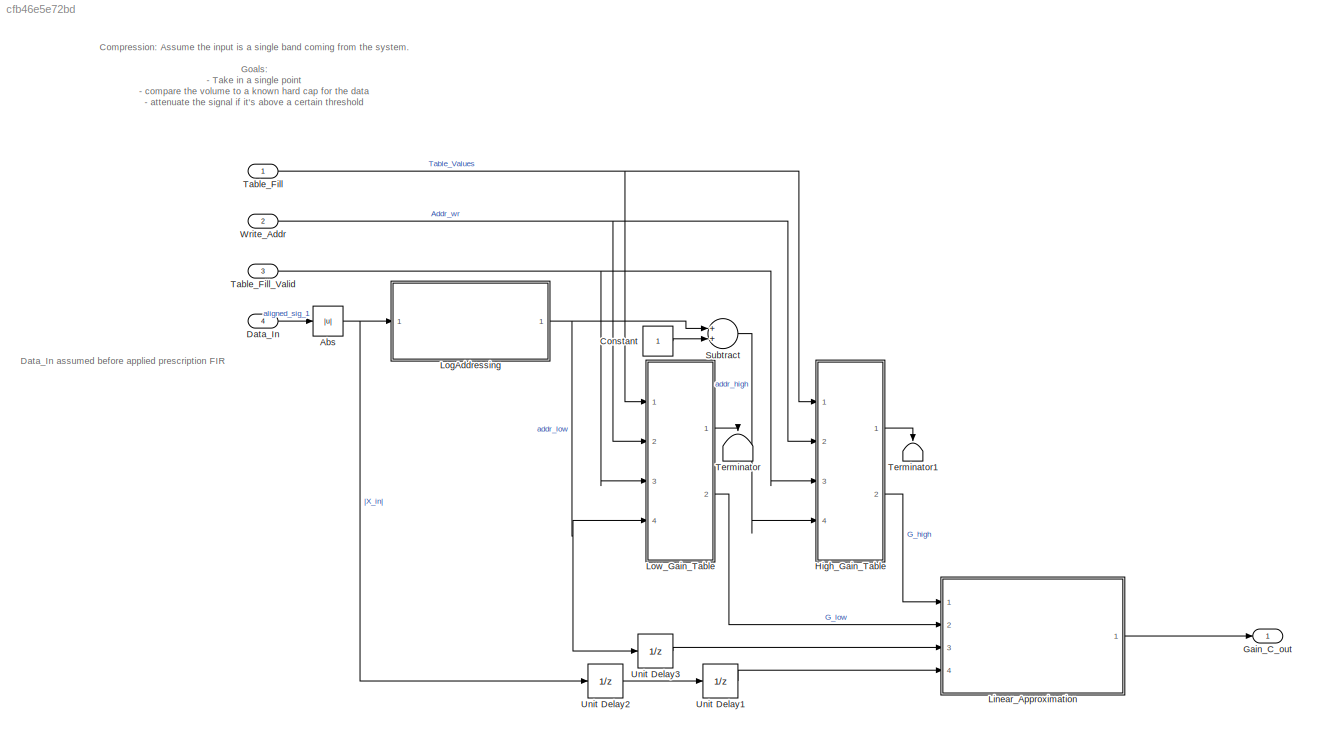
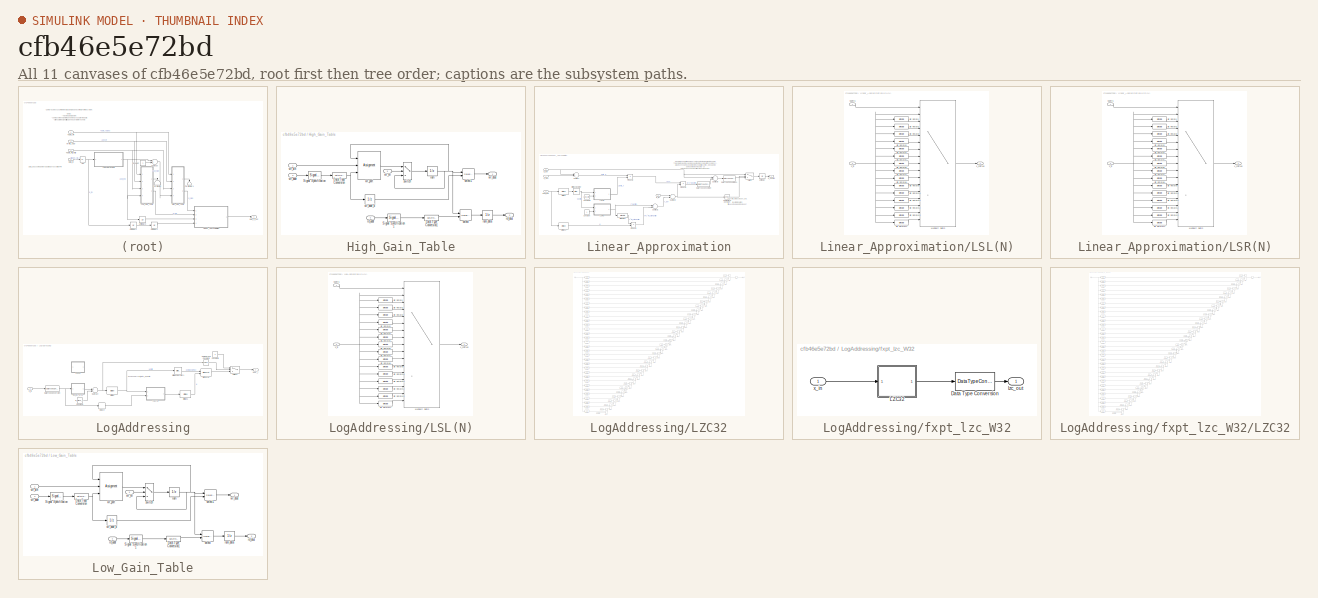
[diagram: thumbnail index - all 11 canvases of the model, root first then tree order]
MODEL slx_cfb46e5e72bd
KIND model
CONFIG AbsTol = auto
CONFIG EnableMultiTasking = off
CONFIG FixedStep = auto
CONFIG InitFcn = clear;\nDIAGNOSTIC = 0;  %% flag to give more information as simulation proceeds such as comments & plots\nCALIB_DIAGNOSTIC =  0; %% flag to give more information about calibration of filterbank due to overlap between filters: Mar 2016\nPRESCRIPT = 1;  %% flag to plot requested versus achieved insertion gains (esp for 125-250 Hz region).\nipfiledigrms = -36; %% input file RMS in dB for 65 dB SPL equiv...<+3611ch>
CONFIG MaxStep = auto
CONFIG MinStep = auto
CONFIG RelTol = 1e-3
CONFIG SampleTimeConstraint = Unconstrained
CONFIG Solver = FixedStepDiscrete
CONFIG SolverName = FixedStepDiscrete
CONFIG StartTime = 0.0
CONFIG StopFcn = proc_sig = double(out.proc_sig.data(:));\n%alignedSigs = double(out.alignedSigs.data(:));\n[opwav, stop_ok] = savewavfile(opfiledigrms, ipfiledigrms, proc_sig, Fs, nbits, NStreams);\n\nload('SweepSimOutput.mat')\nX_out_Sweep_Sim(Volume,:) = proc_sig;\nsave('SweepSimOutput.mat', 'X_out_Sweep_Sim');
CONFIG StopTime = t_end
BLOCK [Abs] Abs
  SaturateOnIntegerOverflow = off
BLOCK [Constant] Constant
  OutDataTypeStr = fixdt(0,9,0)
  SampleTime = -1
BLOCK [Inport] Data_In
  IconDisplay = Port number
  OutDataTypeStr = fixdt(1,32,28)
  Port = 4
  PortDimensions = 1
  SampleTime = [2.0833333333333333e-05,0]
  SamplingMode = Sample based
  SignalType = real
BLOCK [Outport] Gain_C_out
  IconDisplay = Port number
  OutDataTypeStr = fixdt(1,32,28)
  PortDimensions = 1
  SampleTime = [2.0833333333333333e-05,0]
  SamplingMode = Sample based
  SignalType = real
BLOCK [SubSystem] High_Gain_Table
  AncestorBlock = hdlsllibUNLOCKED/HDL RAMs/Dual Port RAM
  Ports = [4, 2]
  RequestExecContextInheritance = off
BLOCK [DataTypeConversion] High_Gain_Table/Data Type Conversion
  OutDataTypeStr = fixdt(0,16,0)
  RndMeth = Floor
  SaturateOnIntegerOverflow = off
BLOCK [DataTypeConversion] High_Gain_Table/Data Type Conversion1
  OutDataTypeStr = fixdt(0,16,0)
  RndMeth = Floor
  SaturateOnIntegerOverflow = off
BLOCK [SignalSpecification] High_Gain_Table/Signal Specification
  Dimensions = 1
  OutDataTypeStr = fixdt(0,ram_size,0)
BLOCK [SignalSpecification] High_Gain_Table/Signal Specification1
  Dimensions = 1
  OutDataTypeStr = fixdt(0,ram_size,0)
BLOCK [UnitDelay] High_Gain_Table/ram
  HasFrameUpgradeWarning = on
  InitialCondition = Table_Fill_t(2^(M_bits+4) +1 : 2*2^(M_bits+4) )
  SampleTime = -1
BLOCK [UnitDelay] High_Gain_Table/ram_data
  HasFrameUpgradeWarning = on
  SampleTime = -1
BLOCK [Inport] High_Gain_Table/rd_addr
  IconDisplay = Port number
  Port = 4
BLOCK [Outport] High_Gain_Table/rd_dout
  IconDisplay = Port number
  Port = 2
BLOCK [Selector] High_Gain_Table/select
  IndexMode = Zero-based
  IndexOptions = Index vector (port)
  Indices = [1 3]
  InputPortWidth = 2^ram_size
  OutputSizes = 1
  Ports = [2, 1]
BLOCK [Selector] High_Gain_Table/select1
  IndexMode = Zero-based
  IndexOptions = Index vector (port)
  Indices = [1 3]
  InputPortWidth = 2^ram_size
  OutputSizes = 1
  Ports = [2, 1]
BLOCK [Switch] High_Gain_Table/switch
  Criteria = u2 ~= 0
  InputSameDT = off
  SaturateOnIntegerOverflow = off
BLOCK [Inport] High_Gain_Table/wr_addr
  IconDisplay = Port number
  Port = 2
BLOCK [UnitDelay] High_Gain_Table/wr_addr_d
  HasFrameUpgradeWarning = on
  SampleTime = -1
BLOCK [Inport] High_Gain_Table/wr_din
  IconDisplay = Port number
BLOCK [Outport] High_Gain_Table/wr_dout
  IconDisplay = Port number
BLOCK [Inport] High_Gain_Table/wr_en
  IconDisplay = Port number
  OutDataTypeStr = boolean
  Port = 3
BLOCK [Assignment] High_Gain_Table/wr_port
  IndexMode = Zero-based
  IndexOptions = Index vector (port)
  Indices = 1
  OutputSizes = [1 1]
  Ports = [3, 1]
BLOCK [SubSystem] Linear_Approximation
  Ports = [4, 1]
  RequestExecContextInheritance = off
BLOCK [Reference] Linear_Approximation/Bit Rotate1  REF=hdlsllib/Logic and Bit
Operations/Bit Rotate
  Ports = [1, 1]
  SourceBlock = hdlsllib/Logic and Bit\nOperations/Bit Rotate
  SourceProductBaseCode = SL
  SourceProductName = Simulink
  SourceType = Bit Rotate
BLOCK [Reference] Linear_Approximation/Bit Slice  REF=hdlsllib/Logic and Bit
Operations/Bit Slice
  Ports = [1, 1]
  SourceBlock = hdlsllib/Logic and Bit\nOperations/Bit Slice
  SourceProductBaseCode = SL
  SourceProductName = Simulink
  SourceType = Bit Slice
BLOCK [Reference] Linear_Approximation/Bit Slice1  REF=hdlsllib/Logic and Bit
Operations/Bit Slice
  Ports = [1, 1]
  SourceBlock = hdlsllib/Logic and Bit\nOperations/Bit Slice
  SourceProductBaseCode = SL
  SourceProductName = Simulink
  SourceType = Bit Slice
BLOCK [Reference] Linear_Approximation/Bitwise Operator  REF=simulink/Logic and Bit
Operations/Bitwise
Operator
  Ports = [1, 1]
  SourceBlock = simulink/Logic and Bit\nOperations/Bitwise\nOperator
  SourceProductBaseCode = SL
  SourceProductName = Simulink
  SourceType = Bitwise Operator
BLOCK [Reference] Linear_Approximation/Compare To Constant  REF=simulink/Logic and Bit
Operations/Compare
To Constant
  Ports = [1, 1]
  SourceBlock = simulink/Logic and Bit\nOperations/Compare\nTo Constant
  SourceProductBaseCode = SL
  SourceProductName = Simulink
  SourceType = Compare To Constant
BLOCK [Constant] Linear_Approximation/Constant
  OutDataTypeStr = fixdt(0,W_bits,W_bits-2)
  SampleTime = -1
BLOCK [Constant] Linear_Approximation/Constant2
  OutDataTypeStr = fixdt(0,W_bits,0)
  SampleTime = -1
  Value = 2^(M_bits)
BLOCK [DataTypeConversion] Linear_Approximation/Data Type Conversion
  OutDataTypeStr = fixdt(1,W_bits,F_bits)
  RndMeth = Floor
  SaturateOnIntegerOverflow = off
BLOCK [DataTypeConversion] Linear_Approximation/Data Type Conversion1
  OutDataTypeStr = fixdt(1,W_bits, F_bits)
  RndMeth = Floor
  SaturateOnIntegerOverflow = off
BLOCK [Outport] Linear_Approximation/G_Desired
  IconDisplay = Port number
BLOCK [Inport] Linear_Approximation/G_high
  IconDisplay = Port number
BLOCK [Inport] Linear_Approximation/G_low
  IconDisplay = Port number
  Port = 2
BLOCK [SubSystem] Linear_Approximation/LSL(N)
  Ports = [2, 1]
  RequestExecContextInheritance = off
BLOCK [Reference] Linear_Approximation/LSL(N)/Bit Rotate  REF=hdlsllib/Logic and Bit
Operations/Bit Rotate
  Ports = [1, 1]
  SourceBlock = hdlsllib/Logic and Bit\nOperations/Bit Rotate
  SourceProductBaseCode = SL
  SourceProductName = Simulink
  SourceType = Bit Rotate
BLOCK [Reference] Linear_Approximation/LSL(N)/Bit Rotate1  REF=hdlsllib/Logic and Bit
Operations/Bit Rotate
  Ports = [1, 1]
  SourceBlock = hdlsllib/Logic and Bit\nOperations/Bit Rotate
  SourceProductBaseCode = SL
  SourceProductName = Simulink
  SourceType = Bit Rotate
BLOCK [Reference] Linear_Approximation/LSL(N)/Bit Rotate10  REF=hdlsllib/Logic and Bit
Operations/Bit Rotate
  Ports = [1, 1]
  SourceBlock = hdlsllib/Logic and Bit\nOperations/Bit Rotate
  SourceProductBaseCode = SL
  SourceProductName = Simulink
  SourceType = Bit Rotate
BLOCK [Reference] Linear_Approximation/LSL(N)/Bit Rotate11  REF=hdlsllib/Logic and Bit
Operations/Bit Rotate
  Ports = [1, 1]
  SourceBlock = hdlsllib/Logic and Bit\nOperations/Bit Rotate
  SourceProductBaseCode = SL
  SourceProductName = Simulink
  SourceType = Bit Rotate
BLOCK [Reference] Linear_Approximation/LSL(N)/Bit Rotate12  REF=hdlsllib/Logic and Bit
Operations/Bit Rotate
  Ports = [1, 1]
  SourceBlock = hdlsllib/Logic and Bit\nOperations/Bit Rotate
  SourceProductBaseCode = SL
  SourceProductName = Simulink
  SourceType = Bit Rotate
BLOCK [Reference] Linear_Approximation/LSL(N)/Bit Rotate13  REF=hdlsllib/Logic and Bit
Operations/Bit Rotate
  Ports = [1, 1]
  SourceBlock = hdlsllib/Logic and Bit\nOperations/Bit Rotate
  SourceProductBaseCode = SL
  SourceProductName = Simulink
  SourceType = Bit Rotate
BLOCK [Reference] Linear_Approximation/LSL(N)/Bit Rotate14  REF=hdlsllib/Logic and Bit
Operations/Bit Rotate
  Ports = [1, 1]
  SourceBlock = hdlsllib/Logic and Bit\nOperations/Bit Rotate
  SourceProductBaseCode = SL
  SourceProductName = Simulink
  SourceType = Bit Rotate
BLOCK [Reference] Linear_Approximation/LSL(N)/Bit Rotate2  REF=hdlsllib/Logic and Bit
Operations/Bit Rotate
  Ports = [1, 1]
  SourceBlock = hdlsllib/Logic and Bit\nOperations/Bit Rotate
  SourceProductBaseCode = SL
  SourceProductName = Simulink
  SourceType = Bit Rotate
BLOCK [Reference] Linear_Approximation/LSL(N)/Bit Rotate3  REF=hdlsllib/Logic and Bit
Operations/Bit Rotate
  Ports = [1, 1]
  SourceBlock = hdlsllib/Logic and Bit\nOperations/Bit Rotate
  SourceProductBaseCode = SL
  SourceProductName = Simulink
  SourceType = Bit Rotate
BLOCK [Reference] Linear_Approximation/LSL(N)/Bit Rotate4  REF=hdlsllib/Logic and Bit
Operations/Bit Rotate
  Ports = [1, 1]
  SourceBlock = hdlsllib/Logic and Bit\nOperations/Bit Rotate
  SourceProductBaseCode = SL
  SourceProductName = Simulink
  SourceType = Bit Rotate
BLOCK [Reference] Linear_Approximation/LSL(N)/Bit Rotate5  REF=hdlsllib/Logic and Bit
Operations/Bit Rotate
  Ports = [1, 1]
  SourceBlock = hdlsllib/Logic and Bit\nOperations/Bit Rotate
  SourceProductBaseCode = SL
  SourceProductName = Simulink
  SourceType = Bit Rotate
BLOCK [Reference] Linear_Approximation/LSL(N)/Bit Rotate6  REF=hdlsllib/Logic and Bit
Operations/Bit Rotate
  Ports = [1, 1]
  SourceBlock = hdlsllib/Logic and Bit\nOperations/Bit Rotate
  SourceProductBaseCode = SL
  SourceProductName = Simulink
  SourceType = Bit Rotate
BLOCK [Reference] Linear_Approximation/LSL(N)/Bit Rotate7  REF=hdlsllib/Logic and Bit
Operations/Bit Rotate
  Ports = [1, 1]
  SourceBlock = hdlsllib/Logic and Bit\nOperations/Bit Rotate
  SourceProductBaseCode = SL
  SourceProductName = Simulink
  SourceType = Bit Rotate
BLOCK [Reference] Linear_Approximation/LSL(N)/Bit Rotate8  REF=hdlsllib/Logic and Bit
Operations/Bit Rotate
  Ports = [1, 1]
  SourceBlock = hdlsllib/Logic and Bit\nOperations/Bit Rotate
  SourceProductBaseCode = SL
  SourceProductName = Simulink
  SourceType = Bit Rotate
BLOCK [Reference] Linear_Approximation/LSL(N)/Bit Rotate9  REF=hdlsllib/Logic and Bit
Operations/Bit Rotate
  Ports = [1, 1]
  SourceBlock = hdlsllib/Logic and Bit\nOperations/Bit Rotate
  SourceProductBaseCode = SL
  SourceProductName = Simulink
  SourceType = Bit Rotate
BLOCK [MultiPortSwitch] Linear_Approximation/LSL(N)/Multiport Switch
  DataPortOrder = Zero-based contiguous
  DiagnosticForDefault = Warning
  InputSameDT = off
  Inputs = 16
  Ports = [17, 1]
  SaturateOnIntegerOverflow = off
  zeroidx = on
BLOCK [Inport] Linear_Approximation/LSL(N)/NShifts
  IconDisplay = Port number
BLOCK [Inport] Linear_Approximation/LSL(N)/x_in
  IconDisplay = Port number
  Port = 2
BLOCK [Outport] Linear_Approximation/LSL(N)/x_shifted
  IconDisplay = Port number
BLOCK [SubSystem] Linear_Approximation/LSR(N)
  Ports = [2, 1]
  RequestExecContextInheritance = off
BLOCK [Reference] Linear_Approximation/LSR(N)/Bit Rotate  REF=hdlsllib/Logic and Bit
Operations/Bit Rotate
  Ports = [1, 1]
  SourceBlock = hdlsllib/Logic and Bit\nOperations/Bit Rotate
  SourceProductBaseCode = SL
  SourceProductName = Simulink
  SourceType = Bit Rotate
BLOCK [Reference] Linear_Approximation/LSR(N)/Bit Rotate1  REF=hdlsllib/Logic and Bit
Operations/Bit Rotate
  Ports = [1, 1]
  SourceBlock = hdlsllib/Logic and Bit\nOperations/Bit Rotate
  SourceProductBaseCode = SL
  SourceProductName = Simulink
  SourceType = Bit Rotate
BLOCK [Reference] Linear_Approximation/LSR(N)/Bit Rotate10  REF=hdlsllib/Logic and Bit
Operations/Bit Rotate
  Ports = [1, 1]
  SourceBlock = hdlsllib/Logic and Bit\nOperations/Bit Rotate
  SourceProductBaseCode = SL
  SourceProductName = Simulink
  SourceType = Bit Rotate
BLOCK [Reference] Linear_Approximation/LSR(N)/Bit Rotate11  REF=hdlsllib/Logic and Bit
Operations/Bit Rotate
  Ports = [1, 1]
  SourceBlock = hdlsllib/Logic and Bit\nOperations/Bit Rotate
  SourceProductBaseCode = SL
  SourceProductName = Simulink
  SourceType = Bit Rotate
BLOCK [Reference] Linear_Approximation/LSR(N)/Bit Rotate12  REF=hdlsllib/Logic and Bit
Operations/Bit Rotate
  Ports = [1, 1]
  SourceBlock = hdlsllib/Logic and Bit\nOperations/Bit Rotate
  SourceProductBaseCode = SL
  SourceProductName = Simulink
  SourceType = Bit Rotate
BLOCK [Reference] Linear_Approximation/LSR(N)/Bit Rotate13  REF=hdlsllib/Logic and Bit
Operations/Bit Rotate
  Ports = [1, 1]
  SourceBlock = hdlsllib/Logic and Bit\nOperations/Bit Rotate
  SourceProductBaseCode = SL
  SourceProductName = Simulink
  SourceType = Bit Rotate
BLOCK [Reference] Linear_Approximation/LSR(N)/Bit Rotate14  REF=hdlsllib/Logic and Bit
Operations/Bit Rotate
  Ports = [1, 1]
  SourceBlock = hdlsllib/Logic and Bit\nOperations/Bit Rotate
  SourceProductBaseCode = SL
  SourceProductName = Simulink
  SourceType = Bit Rotate
BLOCK [Reference] Linear_Approximation/LSR(N)/Bit Rotate2  REF=hdlsllib/Logic and Bit
Operations/Bit Rotate
  Ports = [1, 1]
  SourceBlock = hdlsllib/Logic and Bit\nOperations/Bit Rotate
  SourceProductBaseCode = SL
  SourceProductName = Simulink
  SourceType = Bit Rotate
BLOCK [Reference] Linear_Approximation/LSR(N)/Bit Rotate3  REF=hdlsllib/Logic and Bit
Operations/Bit Rotate
  Ports = [1, 1]
  SourceBlock = hdlsllib/Logic and Bit\nOperations/Bit Rotate
  SourceProductBaseCode = SL
  SourceProductName = Simulink
  SourceType = Bit Rotate
BLOCK [Reference] Linear_Approximation/LSR(N)/Bit Rotate4  REF=hdlsllib/Logic and Bit
Operations/Bit Rotate
  Ports = [1, 1]
  SourceBlock = hdlsllib/Logic and Bit\nOperations/Bit Rotate
  SourceProductBaseCode = SL
  SourceProductName = Simulink
  SourceType = Bit Rotate
BLOCK [Reference] Linear_Approximation/LSR(N)/Bit Rotate5  REF=hdlsllib/Logic and Bit
Operations/Bit Rotate
  Ports = [1, 1]
  SourceBlock = hdlsllib/Logic and Bit\nOperations/Bit Rotate
  SourceProductBaseCode = SL
  SourceProductName = Simulink
  SourceType = Bit Rotate
BLOCK [Reference] Linear_Approximation/LSR(N)/Bit Rotate6  REF=hdlsllib/Logic and Bit
Operations/Bit Rotate
  Ports = [1, 1]
  SourceBlock = hdlsllib/Logic and Bit\nOperations/Bit Rotate
  SourceProductBaseCode = SL
  SourceProductName = Simulink
  SourceType = Bit Rotate
BLOCK [Reference] Linear_Approximation/LSR(N)/Bit Rotate7  REF=hdlsllib/Logic and Bit
Operations/Bit Rotate
  Ports = [1, 1]
  SourceBlock = hdlsllib/Logic and Bit\nOperations/Bit Rotate
  SourceProductBaseCode = SL
  SourceProductName = Simulink
  SourceType = Bit Rotate
BLOCK [Reference] Linear_Approximation/LSR(N)/Bit Rotate8  REF=hdlsllib/Logic and Bit
Operations/Bit Rotate
  Ports = [1, 1]
  SourceBlock = hdlsllib/Logic and Bit\nOperations/Bit Rotate
  SourceProductBaseCode = SL
  SourceProductName = Simulink
  SourceType = Bit Rotate
BLOCK [Reference] Linear_Approximation/LSR(N)/Bit Rotate9  REF=hdlsllib/Logic and Bit
Operations/Bit Rotate
  Ports = [1, 1]
  SourceBlock = hdlsllib/Logic and Bit\nOperations/Bit Rotate
  SourceProductBaseCode = SL
  SourceProductName = Simulink
  SourceType = Bit Rotate
BLOCK [MultiPortSwitch] Linear_Approximation/LSR(N)/Multiport Switch
  DataPortOrder = Zero-based contiguous
  DiagnosticForDefault = Warning
  InputSameDT = off
  Inputs = 16
  Ports = [17, 1]
  SaturateOnIntegerOverflow = off
  zeroidx = on
BLOCK [Inport] Linear_Approximation/LSR(N)/NShifts
  IconDisplay = Port number
BLOCK [Inport] Linear_Approximation/LSR(N)/x_in
  IconDisplay = Port number
  Port = 2
BLOCK [Outport] Linear_Approximation/LSR(N)/x_shifted
  IconDisplay = Port number
BLOCK [Product] Linear_Approximation/Product1
  InputSameDT = off
  OutDataTypeStr = Inherit: Inherit via internal rule
  Ports = [2, 1]
  RndMeth = Floor
  SaturateOnIntegerOverflow = off
BLOCK [Product] Linear_Approximation/Product2
  InputSameDT = off
  OutDataTypeStr = Inherit: Inherit via internal rule
  Ports = [2, 1]
  RndMeth = Floor
  SaturateOnIntegerOverflow = off
BLOCK [Product] Linear_Approximation/Product3
  InputSameDT = off
  OutDataTypeStr = Inherit: Inherit via internal rule
  Ports = [2, 1]
  RndMeth = Floor
  SaturateOnIntegerOverflow = off
BLOCK [Sum] Linear_Approximation/Subtract
  InputSameDT = off
  Inputs = -+
  OutDataTypeStr = Inherit: Inherit via internal rule
  Ports = [2, 1]
  SaturateOnIntegerOverflow = off
BLOCK [Sum] Linear_Approximation/Subtract1
  InputSameDT = off
  OutDataTypeStr = fixdt(1,W_bits, F_bits)
  Ports = [2, 1]
  SaturateOnIntegerOverflow = off
BLOCK [Sum] Linear_Approximation/Subtract2
  InputSameDT = off
  Inputs = +-
  Ports = [2, 1]
  SaturateOnIntegerOverflow = off
BLOCK [Sum] Linear_Approximation/Subtract3
  InputSameDT = off
  OutDataTypeStr = Inherit: Inherit via internal rule
  Ports = [2, 1]
  SaturateOnIntegerOverflow = off
BLOCK [Switch] Linear_Approximation/Switch
  Criteria = u2 > Threshold
  InputSameDT = off
  SaturateOnIntegerOverflow = off
BLOCK [UnitDelay] Linear_Approximation/Unit Delay
  HasFrameUpgradeWarning = on
  InitialCondition = 1
  SampleTime = -1
BLOCK [Inport] Linear_Approximation/addr_low
  IconDisplay = Port number
  Port = 3
BLOCK [Inport] Linear_Approximation/|X_in|
  IconDisplay = Port number
  Port = 4
BLOCK [SubSystem] LogAddressing
  Ports = [1, 1]
  RequestExecContextInheritance = off
BLOCK [Reference] LogAddressing/Bit Concat  REF=hdlsllib/Logic and Bit
Operations/Bit Concat
  Ports = [2, 1]
  SourceBlock = hdlsllib/Logic and Bit\nOperations/Bit Concat
  SourceProductBaseCode = SL
  SourceProductName = Simulink
  SourceType = Bit Concat
BLOCK [Reference] LogAddressing/Bit Slice  REF=hdlsllib/Logic and Bit
Operations/Bit Slice
  Ports = [1, 1]
  SourceBlock = hdlsllib/Logic and Bit\nOperations/Bit Slice
  SourceProductBaseCode = SL
  SourceProductName = Simulink
  SourceType = Bit Slice
BLOCK [Reference] LogAddressing/Bit Slice1  REF=hdlsllib/Logic and Bit
Operations/Bit Slice
  Ports = [1, 1]
  SourceBlock = hdlsllib/Logic and Bit\nOperations/Bit Slice
  SourceProductBaseCode = SL
  SourceProductName = Simulink
  SourceType = Bit Slice
BLOCK [Reference] LogAddressing/Bitwise Operator1  REF=simulink/Logic and Bit
Operations/Bitwise
Operator
  Ports = [1, 1]
  SourceBlock = simulink/Logic and Bit\nOperations/Bitwise\nOperator
  SourceProductBaseCode = SL
  SourceProductName = Simulink
  SourceType = Bitwise Operator
BLOCK [Reference] LogAddressing/Compare To Constant1  REF=simulink/Logic and Bit
Operations/Compare
To Constant
  Ports = [1, 1]
  SourceBlock = simulink/Logic and Bit\nOperations/Compare\nTo Constant
  SourceProductBaseCode = SL
  SourceProductName = Simulink
  SourceType = Compare To Constant
BLOCK [Constant] LogAddressing/Constant1
  OutDataTypeStr = fixdt(0,6,0)
  SampleTime = -1
  Value = W_bits-1-F_bits
BLOCK [Constant] LogAddressing/Constant6
  OutDataTypeStr = fixdt(0,9,0)
  SampleTime = -1
  Value = 0
BLOCK [DataTypeConversion] LogAddressing/Data Type Conversion
  OutDataTypeStr = fixdt(0,W_bits,F_bits)
  RndMeth = Floor
  SaturateOnIntegerOverflow = off
BLOCK [Delay] LogAddressing/Delay2
  DelayLength = 1
  InputPortMap = u0
  Ports = [1, 1]
  SampleTime = Ts_system
BLOCK [SubSystem] LogAddressing/LSL(N)
  Ports = [2, 1]
  RequestExecContextInheritance = off
BLOCK [Reference] LogAddressing/LSL(N)/Bit Rotate  REF=hdlsllib/Logic and Bit
Operations/Bit Rotate
  Ports = [1, 1]
  SourceBlock = hdlsllib/Logic and Bit\nOperations/Bit Rotate
  SourceProductBaseCode = SL
  SourceProductName = Simulink
  SourceType = Bit Rotate
BLOCK [Reference] LogAddressing/LSL(N)/Bit Rotate1  REF=hdlsllib/Logic and Bit
Operations/Bit Rotate
  Ports = [1, 1]
  SourceBlock = hdlsllib/Logic and Bit\nOperations/Bit Rotate
  SourceProductBaseCode = SL
  SourceProductName = Simulink
  SourceType = Bit Rotate
BLOCK [Reference] LogAddressing/LSL(N)/Bit Rotate10  REF=hdlsllib/Logic and Bit
Operations/Bit Rotate
  Ports = [1, 1]
  SourceBlock = hdlsllib/Logic and Bit\nOperations/Bit Rotate
  SourceProductBaseCode = SL
  SourceProductName = Simulink
  SourceType = Bit Rotate
BLOCK [Reference] LogAddressing/LSL(N)/Bit Rotate11  REF=hdlsllib/Logic and Bit
Operations/Bit Rotate
  Ports = [1, 1]
  SourceBlock = hdlsllib/Logic and Bit\nOperations/Bit Rotate
  SourceProductBaseCode = SL
  SourceProductName = Simulink
  SourceType = Bit Rotate
BLOCK [Reference] LogAddressing/LSL(N)/Bit Rotate12  REF=hdlsllib/Logic and Bit
Operations/Bit Rotate
  Ports = [1, 1]
  SourceBlock = hdlsllib/Logic and Bit\nOperations/Bit Rotate
  SourceProductBaseCode = SL
  SourceProductName = Simulink
  SourceType = Bit Rotate
BLOCK [Reference] LogAddressing/LSL(N)/Bit Rotate13  REF=hdlsllib/Logic and Bit
Operations/Bit Rotate
  Ports = [1, 1]
  SourceBlock = hdlsllib/Logic and Bit\nOperations/Bit Rotate
  SourceProductBaseCode = SL
  SourceProductName = Simulink
  SourceType = Bit Rotate
BLOCK [Reference] LogAddressing/LSL(N)/Bit Rotate14  REF=hdlsllib/Logic and Bit
Operations/Bit Rotate
  Ports = [1, 1]
  SourceBlock = hdlsllib/Logic and Bit\nOperations/Bit Rotate
  SourceProductBaseCode = SL
  SourceProductName = Simulink
  SourceType = Bit Rotate
BLOCK [Reference] LogAddressing/LSL(N)/Bit Rotate2  REF=hdlsllib/Logic and Bit
Operations/Bit Rotate
  Ports = [1, 1]
  SourceBlock = hdlsllib/Logic and Bit\nOperations/Bit Rotate
  SourceProductBaseCode = SL
  SourceProductName = Simulink
  SourceType = Bit Rotate
BLOCK [Reference] LogAddressing/LSL(N)/Bit Rotate3  REF=hdlsllib/Logic and Bit
Operations/Bit Rotate
  Ports = [1, 1]
  SourceBlock = hdlsllib/Logic and Bit\nOperations/Bit Rotate
  SourceProductBaseCode = SL
  SourceProductName = Simulink
  SourceType = Bit Rotate
BLOCK [Reference] LogAddressing/LSL(N)/Bit Rotate4  REF=hdlsllib/Logic and Bit
Operations/Bit Rotate
  Ports = [1, 1]
  SourceBlock = hdlsllib/Logic and Bit\nOperations/Bit Rotate
  SourceProductBaseCode = SL
  SourceProductName = Simulink
  SourceType = Bit Rotate
BLOCK [Reference] LogAddressing/LSL(N)/Bit Rotate5  REF=hdlsllib/Logic and Bit
Operations/Bit Rotate
  Ports = [1, 1]
  SourceBlock = hdlsllib/Logic and Bit\nOperations/Bit Rotate
  SourceProductBaseCode = SL
  SourceProductName = Simulink
  SourceType = Bit Rotate
BLOCK [Reference] LogAddressing/LSL(N)/Bit Rotate6  REF=hdlsllib/Logic and Bit
Operations/Bit Rotate
  Ports = [1, 1]
  SourceBlock = hdlsllib/Logic and Bit\nOperations/Bit Rotate
  SourceProductBaseCode = SL
  SourceProductName = Simulink
  SourceType = Bit Rotate
BLOCK [Reference] LogAddressing/LSL(N)/Bit Rotate7  REF=hdlsllib/Logic and Bit
Operations/Bit Rotate
  Ports = [1, 1]
  SourceBlock = hdlsllib/Logic and Bit\nOperations/Bit Rotate
  SourceProductBaseCode = SL
  SourceProductName = Simulink
  SourceType = Bit Rotate
BLOCK [Reference] LogAddressing/LSL(N)/Bit Rotate8  REF=hdlsllib/Logic and Bit
Operations/Bit Rotate
  Ports = [1, 1]
  SourceBlock = hdlsllib/Logic and Bit\nOperations/Bit Rotate
  SourceProductBaseCode = SL
  SourceProductName = Simulink
  SourceType = Bit Rotate
BLOCK [Reference] LogAddressing/LSL(N)/Bit Rotate9  REF=hdlsllib/Logic and Bit
Operations/Bit Rotate
  Ports = [1, 1]
  SourceBlock = hdlsllib/Logic and Bit\nOperations/Bit Rotate
  SourceProductBaseCode = SL
  SourceProductName = Simulink
  SourceType = Bit Rotate
BLOCK [MultiPortSwitch] LogAddressing/LSL(N)/Multiport Switch
  DataPortOrder = Zero-based contiguous
  DiagnosticForDefault = Warning
  InputSameDT = off
  Inputs = 16
  Ports = [17, 1]
  SaturateOnIntegerOverflow = off
  zeroidx = on
BLOCK [Inport] LogAddressing/LSL(N)/NShifts
  IconDisplay = Port number
BLOCK [Inport] LogAddressing/LSL(N)/x_in
  IconDisplay = Port number
  Port = 2
BLOCK [Outport] LogAddressing/LSL(N)/x_shifted
  IconDisplay = Port number
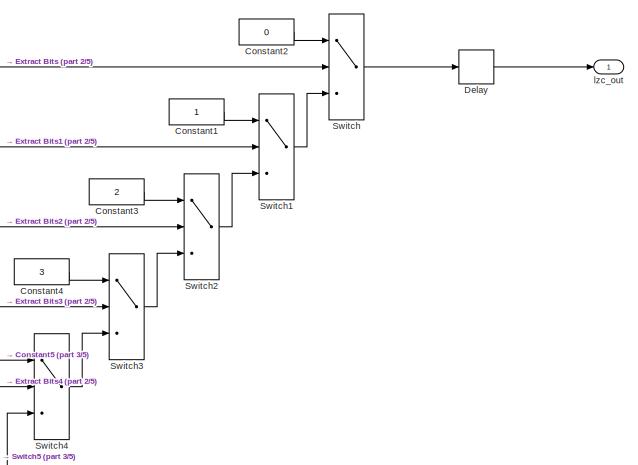
[diagram: LogAddressing/LZC32 - part 1/5, top right region]
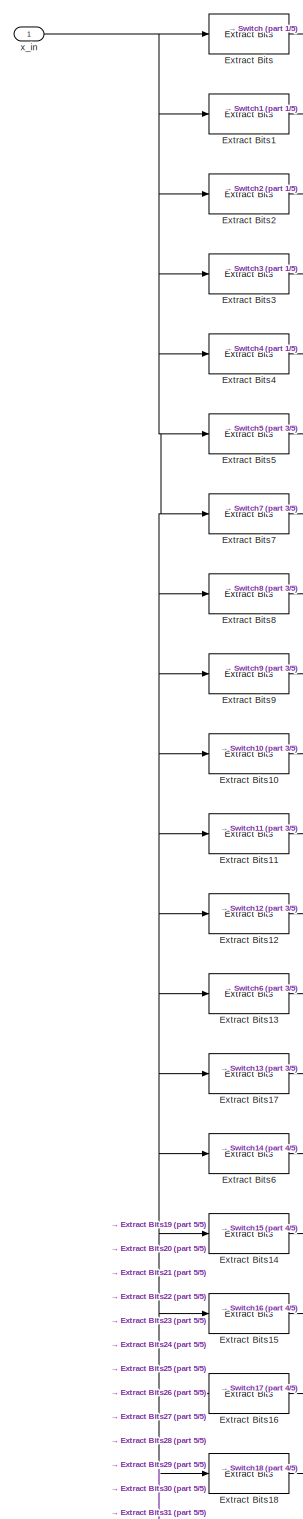
[diagram: LogAddressing/LZC32 - part 2/5, top left region]
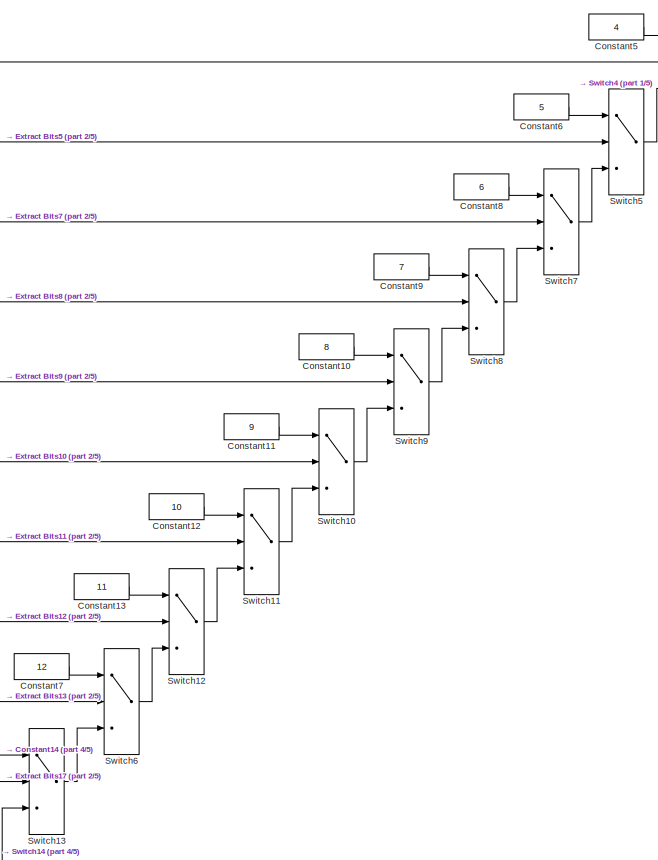
[diagram: LogAddressing/LZC32 - part 3/5, top right region]
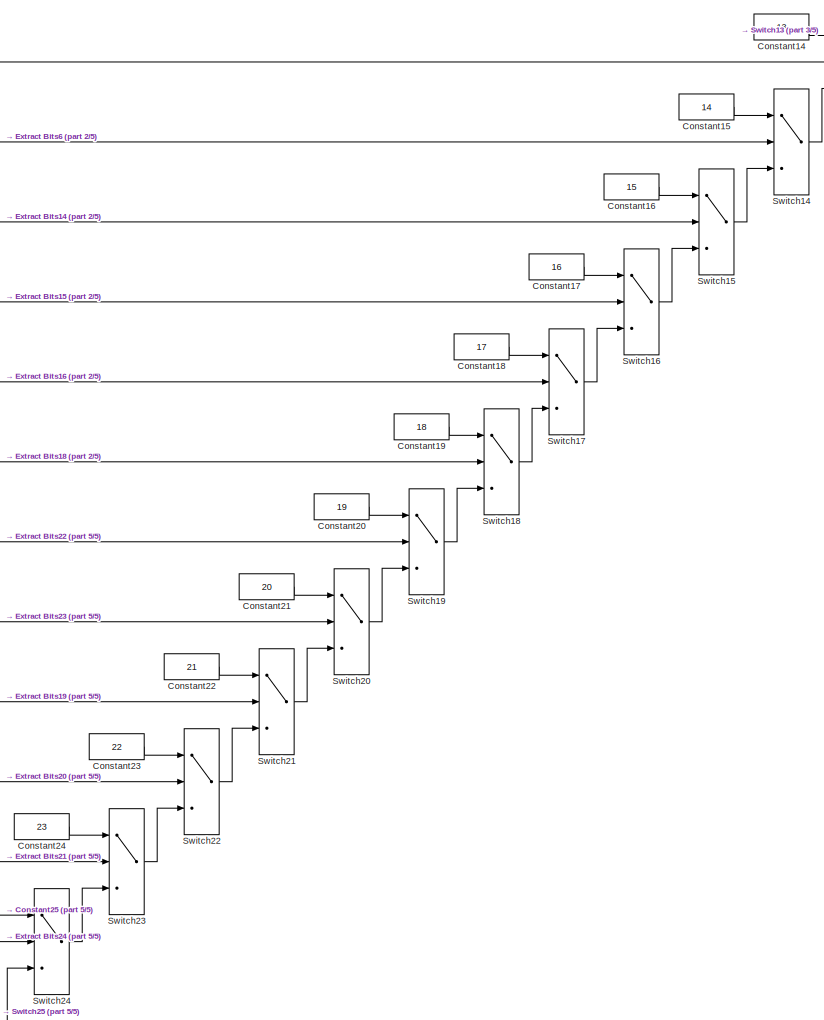
[diagram: LogAddressing/LZC32 - part 4/5, central region]
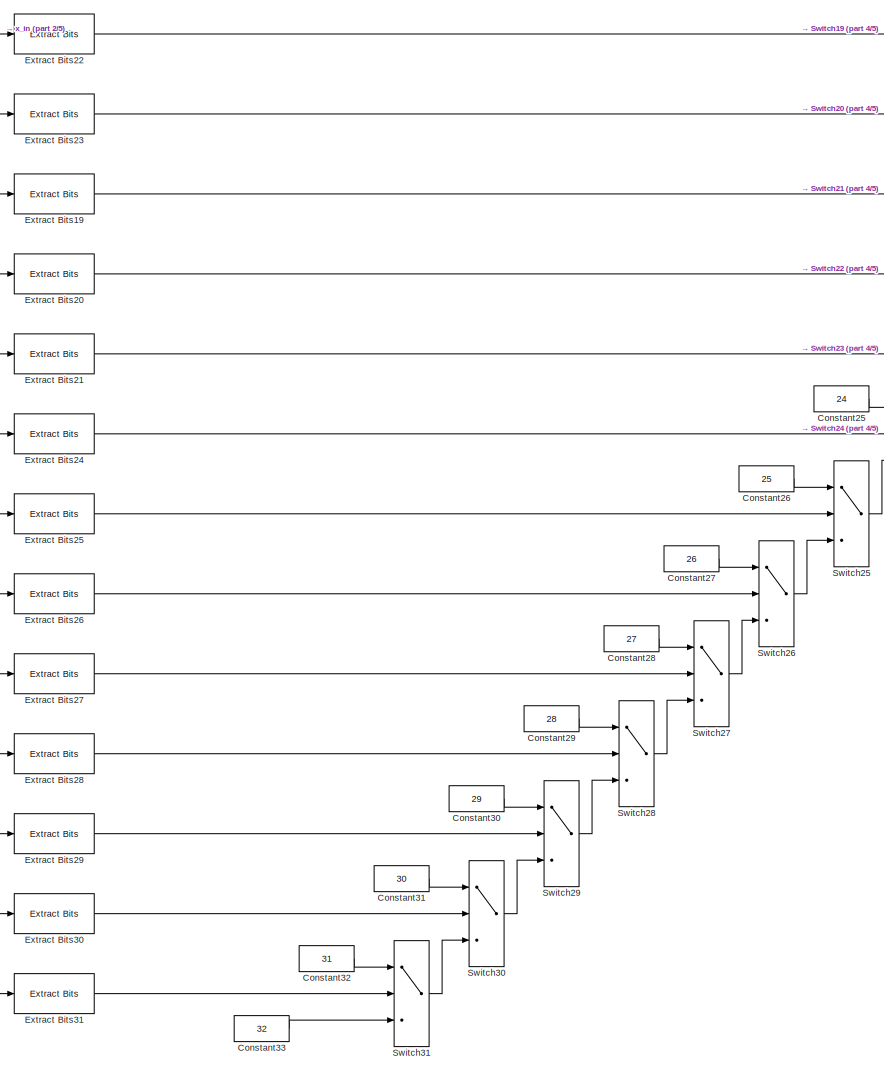
[diagram: LogAddressing/LZC32 - part 5/5, bottom left region]
BLOCK [SubSystem] LogAddressing/LZC32
  Commented = on
  Ports = [1, 1]
  RequestExecContextInheritance = off
  TreatAsAtomicUnit = on
BLOCK [Constant] LogAddressing/LZC32/Constant1
  OutDataTypeStr = fixdt(0,6,0)
  SampleTime = Ts_system
BLOCK [Constant] LogAddressing/LZC32/Constant10
  OutDataTypeStr = fixdt(0,6,0)
  SampleTime = Ts_system
  Value = 8
BLOCK [Constant] LogAddressing/LZC32/Constant11
  OutDataTypeStr = fixdt(0,6,0)
  SampleTime = Ts_system
  Value = 9
BLOCK [Constant] LogAddressing/LZC32/Constant12
  OutDataTypeStr = fixdt(0,6,0)
  SampleTime = Ts_system
  Value = 10
BLOCK [Constant] LogAddressing/LZC32/Constant13
  OutDataTypeStr = fixdt(0,6,0)
  SampleTime = Ts_system
  Value = 11
BLOCK [Constant] LogAddressing/LZC32/Constant14
  OutDataTypeStr = fixdt(0,6,0)
  SampleTime = Ts_system
  Value = 13
BLOCK [Constant] LogAddressing/LZC32/Constant15
  OutDataTypeStr = fixdt(0,6,0)
  SampleTime = Ts_system
  Value = 14
BLOCK [Constant] LogAddressing/LZC32/Constant16
  OutDataTypeStr = fixdt(0,6,0)
  SampleTime = Ts_system
  Value = 15
BLOCK [Constant] LogAddressing/LZC32/Constant17
  OutDataTypeStr = fixdt(0,6,0)
  SampleTime = Ts_system
  Value = 16
BLOCK [Constant] LogAddressing/LZC32/Constant18
  OutDataTypeStr = fixdt(0,6,0)
  SampleTime = Ts_system
  Value = 17
BLOCK [Constant] LogAddressing/LZC32/Constant19
  OutDataTypeStr = fixdt(0,6,0)
  SampleTime = Ts_system
  Value = 18
BLOCK [Constant] LogAddressing/LZC32/Constant2
  OutDataTypeStr = fixdt(0,6,0)
  SampleTime = Ts_system
  Value = 0
BLOCK [Constant] LogAddressing/LZC32/Constant20
  OutDataTypeStr = fixdt(0,6,0)
  SampleTime = Ts_system
  Value = 19
BLOCK [Constant] LogAddressing/LZC32/Constant21
  OutDataTypeStr = fixdt(0,6,0)
  SampleTime = Ts_system
  Value = 20
BLOCK [Constant] LogAddressing/LZC32/Constant22
  OutDataTypeStr = fixdt(0,6,0)
  SampleTime = Ts_system
  Value = 21
BLOCK [Constant] LogAddressing/LZC32/Constant23
  OutDataTypeStr = fixdt(0,6,0)
  SampleTime = Ts_system
  Value = 22
BLOCK [Constant] LogAddressing/LZC32/Constant24
  OutDataTypeStr = fixdt(0,6,0)
  SampleTime = Ts_system
  Value = 23
BLOCK [Constant] LogAddressing/LZC32/Constant25
  OutDataTypeStr = fixdt(0,6,0)
  SampleTime = Ts_system
  Value = 24
BLOCK [Constant] LogAddressing/LZC32/Constant26
  OutDataTypeStr = fixdt(0,6,0)
  SampleTime = Ts_system
  Value = 25
BLOCK [Constant] LogAddressing/LZC32/Constant27
  OutDataTypeStr = fixdt(0,6,0)
  SampleTime = Ts_system
  Value = 26
BLOCK [Constant] LogAddressing/LZC32/Constant28
  OutDataTypeStr = fixdt(0,6,0)
  SampleTime = Ts_system
  Value = 27
BLOCK [Constant] LogAddressing/LZC32/Constant29
  OutDataTypeStr = fixdt(0,6,0)
  SampleTime = Ts_system
  Value = 28
BLOCK [Constant] LogAddressing/LZC32/Constant3
  OutDataTypeStr = fixdt(0,6,0)
  SampleTime = Ts_system
  Value = 2
BLOCK [Constant] LogAddressing/LZC32/Constant30
  OutDataTypeStr = fixdt(0,6,0)
  SampleTime = Ts_system
  Value = 29
BLOCK [Constant] LogAddressing/LZC32/Constant31
  OutDataTypeStr = fixdt(0,6,0)
  SampleTime = Ts_system
  Value = 30
BLOCK [Constant] LogAddressing/LZC32/Constant32
  OutDataTypeStr = fixdt(0,6,0)
  SampleTime = Ts_system
  Value = 31
BLOCK [Constant] LogAddressing/LZC32/Constant33
  OutDataTypeStr = fixdt(0,6,0)
  SampleTime = Ts_system
  Value = 32
BLOCK [Constant] LogAddressing/LZC32/Constant4
  OutDataTypeStr = fixdt(0,6,0)
  SampleTime = Ts_system
  Value = 3
BLOCK [Constant] LogAddressing/LZC32/Constant5
  OutDataTypeStr = fixdt(0,6,0)
  SampleTime = Ts_system
  Value = 4
BLOCK [Constant] LogAddressing/LZC32/Constant6
  OutDataTypeStr = fixdt(0,6,0)
  SampleTime = Ts_system
  Value = 5
BLOCK [Constant] LogAddressing/LZC32/Constant7
  OutDataTypeStr = fixdt(0,6,0)
  SampleTime = Ts_system
  Value = 12
BLOCK [Constant] LogAddressing/LZC32/Constant8
  OutDataTypeStr = fixdt(0,6,0)
  SampleTime = Ts_system
  Value = 6
BLOCK [Constant] LogAddressing/LZC32/Constant9
  OutDataTypeStr = fixdt(0,6,0)
  SampleTime = Ts_system
  Value = 7
BLOCK [Delay] LogAddressing/LZC32/Delay
  DelayLength = 1
  InitialCondition = 3
  InputPortMap = u0
  Ports = [1, 1]
  SampleTime = Ts_system
BLOCK [Reference] LogAddressing/LZC32/Extract Bits  REF=simulink/Logic and Bit
Operations/Extract Bits
  Ports = [1, 1]
  SourceBlock = simulink/Logic and Bit\nOperations/Extract Bits
  SourceProductBaseCode = SL
  SourceProductName = Simulink
  SourceType = Extract Bits
BLOCK [Reference] LogAddressing/LZC32/Extract Bits1  REF=simulink/Logic and Bit
Operations/Extract Bits
  Ports = [1, 1]
  SourceBlock = simulink/Logic and Bit\nOperations/Extract Bits
  SourceProductBaseCode = SL
  SourceProductName = Simulink
  SourceType = Extract Bits
BLOCK [Reference] LogAddressing/LZC32/Extract Bits10  REF=simulink/Logic and Bit
Operations/Extract Bits
  Ports = [1, 1]
  SourceBlock = simulink/Logic and Bit\nOperations/Extract Bits
  SourceProductBaseCode = SL
  SourceProductName = Simulink
  SourceType = Extract Bits
BLOCK [Reference] LogAddressing/LZC32/Extract Bits11  REF=simulink/Logic and Bit
Operations/Extract Bits
  Ports = [1, 1]
  SourceBlock = simulink/Logic and Bit\nOperations/Extract Bits
  SourceProductBaseCode = SL
  SourceProductName = Simulink
  SourceType = Extract Bits
BLOCK [Reference] LogAddressing/LZC32/Extract Bits12  REF=simulink/Logic and Bit
Operations/Extract Bits
  Ports = [1, 1]
  SourceBlock = simulink/Logic and Bit\nOperations/Extract Bits
  SourceProductBaseCode = SL
  SourceProductName = Simulink
  SourceType = Extract Bits
BLOCK [Reference] LogAddressing/LZC32/Extract Bits13  REF=simulink/Logic and Bit
Operations/Extract Bits
  Ports = [1, 1]
  SourceBlock = simulink/Logic and Bit\nOperations/Extract Bits
  SourceProductBaseCode = SL
  SourceProductName = Simulink
  SourceType = Extract Bits
BLOCK [Reference] LogAddressing/LZC32/Extract Bits14  REF=simulink/Logic and Bit
Operations/Extract Bits
  Ports = [1, 1]
  SourceBlock = simulink/Logic and Bit\nOperations/Extract Bits
  SourceProductBaseCode = SL
  SourceProductName = Simulink
  SourceType = Extract Bits
BLOCK [Reference] LogAddressing/LZC32/Extract Bits15  REF=simulink/Logic and Bit
Operations/Extract Bits
  Ports = [1, 1]
  SourceBlock = simulink/Logic and Bit\nOperations/Extract Bits
  SourceProductBaseCode = SL
  SourceProductName = Simulink
  SourceType = Extract Bits
BLOCK [Reference] LogAddressing/LZC32/Extract Bits16  REF=simulink/Logic and Bit
Operations/Extract Bits
  Ports = [1, 1]
  SourceBlock = simulink/Logic and Bit\nOperations/Extract Bits
  SourceProductBaseCode = SL
  SourceProductName = Simulink
  SourceType = Extract Bits
BLOCK [Reference] LogAddressing/LZC32/Extract Bits17  REF=simulink/Logic and Bit
Operations/Extract Bits
  Ports = [1, 1]
  SourceBlock = simulink/Logic and Bit\nOperations/Extract Bits
  SourceProductBaseCode = SL
  SourceProductName = Simulink
  SourceType = Extract Bits
BLOCK [Reference] LogAddressing/LZC32/Extract Bits18  REF=simulink/Logic and Bit
Operations/Extract Bits
  Ports = [1, 1]
  SourceBlock = simulink/Logic and Bit\nOperations/Extract Bits
  SourceProductBaseCode = SL
  SourceProductName = Simulink
  SourceType = Extract Bits
BLOCK [Reference] LogAddressing/LZC32/Extract Bits19  REF=simulink/Logic and Bit
Operations/Extract Bits
  Ports = [1, 1]
  SourceBlock = simulink/Logic and Bit\nOperations/Extract Bits
  SourceProductBaseCode = SL
  SourceProductName = Simulink
  SourceType = Extract Bits
BLOCK [Reference] LogAddressing/LZC32/Extract Bits2  REF=simulink/Logic and Bit
Operations/Extract Bits
  Ports = [1, 1]
  SourceBlock = simulink/Logic and Bit\nOperations/Extract Bits
  SourceProductBaseCode = SL
  SourceProductName = Simulink
  SourceType = Extract Bits
BLOCK [Reference] LogAddressing/LZC32/Extract Bits20  REF=simulink/Logic and Bit
Operations/Extract Bits
  Ports = [1, 1]
  SourceBlock = simulink/Logic and Bit\nOperations/Extract Bits
  SourceProductBaseCode = SL
  SourceProductName = Simulink
  SourceType = Extract Bits
BLOCK [Reference] LogAddressing/LZC32/Extract Bits21  REF=simulink/Logic and Bit
Operations/Extract Bits
  Ports = [1, 1]
  SourceBlock = simulink/Logic and Bit\nOperations/Extract Bits
  SourceProductBaseCode = SL
  SourceProductName = Simulink
  SourceType = Extract Bits
BLOCK [Reference] LogAddressing/LZC32/Extract Bits22  REF=simulink/Logic and Bit
Operations/Extract Bits
  Ports = [1, 1]
  SourceBlock = simulink/Logic and Bit\nOperations/Extract Bits
  SourceProductBaseCode = SL
  SourceProductName = Simulink
  SourceType = Extract Bits
BLOCK [Reference] LogAddressing/LZC32/Extract Bits23  REF=simulink/Logic and Bit
Operations/Extract Bits
  Ports = [1, 1]
  SourceBlock = simulink/Logic and Bit\nOperations/Extract Bits
  SourceProductBaseCode = SL
  SourceProductName = Simulink
  SourceType = Extract Bits
BLOCK [Reference] LogAddressing/LZC32/Extract Bits24  REF=simulink/Logic and Bit
Operations/Extract Bits
  Ports = [1, 1]
  SourceBlock = simulink/Logic and Bit\nOperations/Extract Bits
  SourceProductBaseCode = SL
  SourceProductName = Simulink
  SourceType = Extract Bits
BLOCK [Reference] LogAddressing/LZC32/Extract Bits25  REF=simulink/Logic and Bit
Operations/Extract Bits
  Ports = [1, 1]
  SourceBlock = simulink/Logic and Bit\nOperations/Extract Bits
  SourceProductBaseCode = SL
  SourceProductName = Simulink
  SourceType = Extract Bits
BLOCK [Reference] LogAddressing/LZC32/Extract Bits26  REF=simulink/Logic and Bit
Operations/Extract Bits
  Ports = [1, 1]
  SourceBlock = simulink/Logic and Bit\nOperations/Extract Bits
  SourceProductBaseCode = SL
  SourceProductName = Simulink
  SourceType = Extract Bits
BLOCK [Reference] LogAddressing/LZC32/Extract Bits27  REF=simulink/Logic and Bit
Operations/Extract Bits
  Ports = [1, 1]
  SourceBlock = simulink/Logic and Bit\nOperations/Extract Bits
  SourceProductBaseCode = SL
  SourceProductName = Simulink
  SourceType = Extract Bits
BLOCK [Reference] LogAddressing/LZC32/Extract Bits28  REF=simulink/Logic and Bit
Operations/Extract Bits
  Ports = [1, 1]
  SourceBlock = simulink/Logic and Bit\nOperations/Extract Bits
  SourceProductBaseCode = SL
  SourceProductName = Simulink
  SourceType = Extract Bits
BLOCK [Reference] LogAddressing/LZC32/Extract Bits29  REF=simulink/Logic and Bit
Operations/Extract Bits
  Ports = [1, 1]
  SourceBlock = simulink/Logic and Bit\nOperations/Extract Bits
  SourceProductBaseCode = SL
  SourceProductName = Simulink
  SourceType = Extract Bits
BLOCK [Reference] LogAddressing/LZC32/Extract Bits3  REF=simulink/Logic and Bit
Operations/Extract Bits
  Ports = [1, 1]
  SourceBlock = simulink/Logic and Bit\nOperations/Extract Bits
  SourceProductBaseCode = SL
  SourceProductName = Simulink
  SourceType = Extract Bits
BLOCK [Reference] LogAddressing/LZC32/Extract Bits30  REF=simulink/Logic and Bit
Operations/Extract Bits
  Ports = [1, 1]
  SourceBlock = simulink/Logic and Bit\nOperations/Extract Bits
  SourceProductBaseCode = SL
  SourceProductName = Simulink
  SourceType = Extract Bits
BLOCK [Reference] LogAddressing/LZC32/Extract Bits31  REF=simulink/Logic and Bit
Operations/Extract Bits
  Ports = [1, 1]
  SourceBlock = simulink/Logic and Bit\nOperations/Extract Bits
  SourceProductBaseCode = SL
  SourceProductName = Simulink
  SourceType = Extract Bits
BLOCK [Reference] LogAddressing/LZC32/Extract Bits4  REF=simulink/Logic and Bit
Operations/Extract Bits
  Ports = [1, 1]
  SourceBlock = simulink/Logic and Bit\nOperations/Extract Bits
  SourceProductBaseCode = SL
  SourceProductName = Simulink
  SourceType = Extract Bits
BLOCK [Reference] LogAddressing/LZC32/Extract Bits5  REF=simulink/Logic and Bit
Operations/Extract Bits
  Ports = [1, 1]
  SourceBlock = simulink/Logic and Bit\nOperations/Extract Bits
  SourceProductBaseCode = SL
  SourceProductName = Simulink
  SourceType = Extract Bits
BLOCK [Reference] LogAddressing/LZC32/Extract Bits6  REF=simulink/Logic and Bit
Operations/Extract Bits
  Ports = [1, 1]
  SourceBlock = simulink/Logic and Bit\nOperations/Extract Bits
  SourceProductBaseCode = SL
  SourceProductName = Simulink
  SourceType = Extract Bits
BLOCK [Reference] LogAddressing/LZC32/Extract Bits7  REF=simulink/Logic and Bit
Operations/Extract Bits
  Ports = [1, 1]
  SourceBlock = simulink/Logic and Bit\nOperations/Extract Bits
  SourceProductBaseCode = SL
  SourceProductName = Simulink
  SourceType = Extract Bits
BLOCK [Reference] LogAddressing/LZC32/Extract Bits8  REF=simulink/Logic and Bit
Operations/Extract Bits
  Ports = [1, 1]
  SourceBlock = simulink/Logic and Bit\nOperations/Extract Bits
  SourceProductBaseCode = SL
  SourceProductName = Simulink
  SourceType = Extract Bits
BLOCK [Reference] LogAddressing/LZC32/Extract Bits9  REF=simulink/Logic and Bit
Operations/Extract Bits
  Ports = [1, 1]
  SourceBlock = simulink/Logic and Bit\nOperations/Extract Bits
  SourceProductBaseCode = SL
  SourceProductName = Simulink
  SourceType = Extract Bits
BLOCK [Switch] LogAddressing/LZC32/Switch
  Criteria = u2 ~= 0
  InputSameDT = off
  SaturateOnIntegerOverflow = off
BLOCK [Switch] LogAddressing/LZC32/Switch1
  Criteria = u2 ~= 0
  InputSameDT = off
  SaturateOnIntegerOverflow = off
BLOCK [Switch] LogAddressing/LZC32/Switch10
  Criteria = u2 ~= 0
  InputSameDT = off
  SaturateOnIntegerOverflow = off
BLOCK [Switch] LogAddressing/LZC32/Switch11
  Criteria = u2 ~= 0
  InputSameDT = off
  SaturateOnIntegerOverflow = off
BLOCK [Switch] LogAddressing/LZC32/Switch12
  Criteria = u2 ~= 0
  InputSameDT = off
  SaturateOnIntegerOverflow = off
BLOCK [Switch] LogAddressing/LZC32/Switch13
  Criteria = u2 ~= 0
  InputSameDT = off
  SaturateOnIntegerOverflow = off
BLOCK [Switch] LogAddressing/LZC32/Switch14
  Criteria = u2 ~= 0
  InputSameDT = off
  SaturateOnIntegerOverflow = off
BLOCK [Switch] LogAddressing/LZC32/Switch15
  Criteria = u2 ~= 0
  InputSameDT = off
  SaturateOnIntegerOverflow = off
BLOCK [Switch] LogAddressing/LZC32/Switch16
  Criteria = u2 ~= 0
  InputSameDT = off
  SaturateOnIntegerOverflow = off
BLOCK [Switch] LogAddressing/LZC32/Switch17
  Criteria = u2 ~= 0
  InputSameDT = off
  SaturateOnIntegerOverflow = off
BLOCK [Switch] LogAddressing/LZC32/Switch18
  Criteria = u2 ~= 0
  InputSameDT = off
  SaturateOnIntegerOverflow = off
BLOCK [Switch] LogAddressing/LZC32/Switch19
  Criteria = u2 ~= 0
  InputSameDT = off
  SaturateOnIntegerOverflow = off
BLOCK [Switch] LogAddressing/LZC32/Switch2
  Criteria = u2 ~= 0
  InputSameDT = off
  SaturateOnIntegerOverflow = off
BLOCK [Switch] LogAddressing/LZC32/Switch20
  Criteria = u2 ~= 0
  InputSameDT = off
  SaturateOnIntegerOverflow = off
BLOCK [Switch] LogAddressing/LZC32/Switch21
  Criteria = u2 ~= 0
  InputSameDT = off
  SaturateOnIntegerOverflow = off
BLOCK [Switch] LogAddressing/LZC32/Switch22
  Criteria = u2 ~= 0
  InputSameDT = off
  SaturateOnIntegerOverflow = off
BLOCK [Switch] LogAddressing/LZC32/Switch23
  Criteria = u2 ~= 0
  InputSameDT = off
  SaturateOnIntegerOverflow = off
BLOCK [Switch] LogAddressing/LZC32/Switch24
  Criteria = u2 ~= 0
  InputSameDT = off
  SaturateOnIntegerOverflow = off
BLOCK [Switch] LogAddressing/LZC32/Switch25
  Criteria = u2 ~= 0
  InputSameDT = off
  SaturateOnIntegerOverflow = off
BLOCK [Switch] LogAddressing/LZC32/Switch26
  Criteria = u2 ~= 0
  InputSameDT = off
  SaturateOnIntegerOverflow = off
BLOCK [Switch] LogAddressing/LZC32/Switch27
  Criteria = u2 ~= 0
  InputSameDT = off
  SaturateOnIntegerOverflow = off
BLOCK [Switch] LogAddressing/LZC32/Switch28
  Criteria = u2 ~= 0
  InputSameDT = off
  SaturateOnIntegerOverflow = off
BLOCK [Switch] LogAddressing/LZC32/Switch29
  Criteria = u2 ~= 0
  InputSameDT = off
  SaturateOnIntegerOverflow = off
BLOCK [Switch] LogAddressing/LZC32/Switch3
  Criteria = u2 ~= 0
  InputSameDT = off
  SaturateOnIntegerOverflow = off
BLOCK [Switch] LogAddressing/LZC32/Switch30
  Criteria = u2 ~= 0
  InputSameDT = off
  SaturateOnIntegerOverflow = off
BLOCK [Switch] LogAddressing/LZC32/Switch31
  Criteria = u2 ~= 0
  InputSameDT = off
  SaturateOnIntegerOverflow = off
BLOCK [Switch] LogAddressing/LZC32/Switch4
  Criteria = u2 ~= 0
  InputSameDT = off
  SaturateOnIntegerOverflow = off
BLOCK [Switch] LogAddressing/LZC32/Switch5
  Criteria = u2 ~= 0
  InputSameDT = off
  SaturateOnIntegerOverflow = off
BLOCK [Switch] LogAddressing/LZC32/Switch6
  Criteria = u2 ~= 0
  InputSameDT = off
  SaturateOnIntegerOverflow = off
BLOCK [Switch] LogAddressing/LZC32/Switch7
  Criteria = u2 ~= 0
  InputSameDT = off
  SaturateOnIntegerOverflow = off
BLOCK [Switch] LogAddressing/LZC32/Switch8
  Criteria = u2 ~= 0
  InputSameDT = off
  SaturateOnIntegerOverflow = off
BLOCK [Switch] LogAddressing/LZC32/Switch9
  Criteria = u2 ~= 0
  InputSameDT = off
  SaturateOnIntegerOverflow = off
BLOCK [Outport] LogAddressing/LZC32/lzc_out
  IconDisplay = Port number
BLOCK [Inport] LogAddressing/LZC32/x_in
  IconDisplay = Port number
BLOCK [Sum] LogAddressing/Subtract
  AccumDataTypeStr = Inherit: Same as first input
  InputSameDT = off
  Inputs = +-
  Ports = [2, 1]
  SaturateOnIntegerOverflow = off
BLOCK [Switch] LogAddressing/Switch1
  Criteria = u2 ~= 0
  InputSameDT = off
  SaturateOnIntegerOverflow = off
BLOCK [Outport] LogAddressing/addr_r
  IconDisplay = Port number
BLOCK [SubSystem] LogAddressing/fxpt_lzc_W32
  Ports = [1, 1]
  RequestExecContextInheritance = off
  TreatAsAtomicUnit = on
BLOCK [DataTypeConversion] LogAddressing/fxpt_lzc_W32/Data Type Conversion
  OutDataTypeStr = fixdt(0,6,0)
  RndMeth = Floor
  SaturateOnIntegerOverflow = off
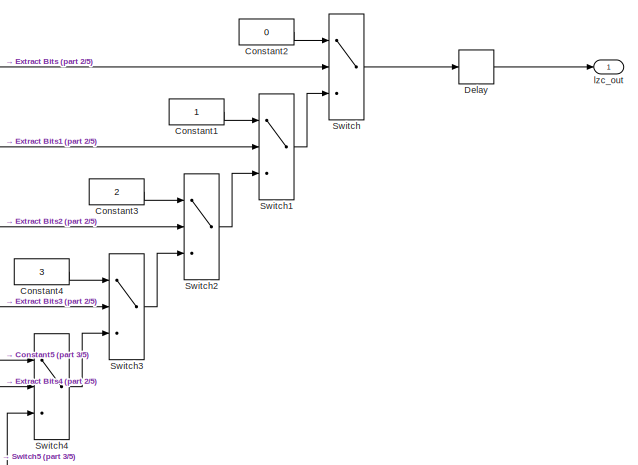
[diagram: LogAddressing/fxpt_lzc_W32/LZC32 - part 1/5, top right region]
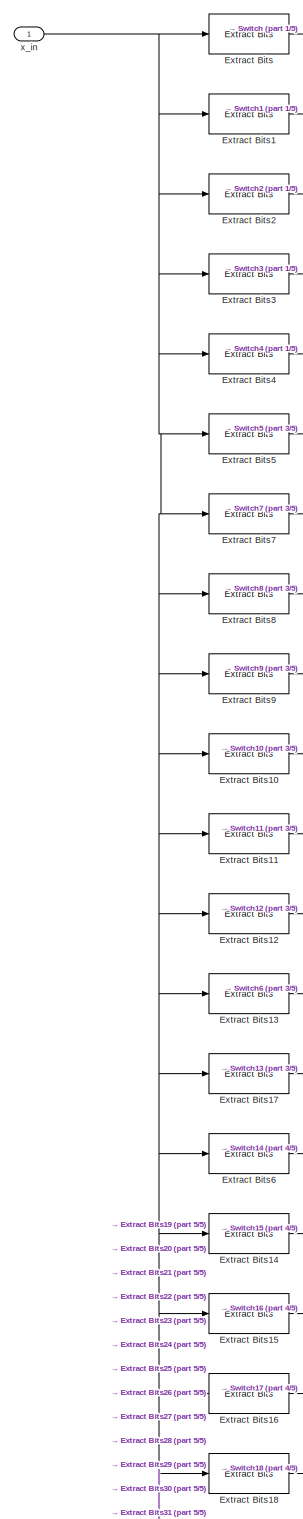
[diagram: LogAddressing/fxpt_lzc_W32/LZC32 - part 2/5, top left region]
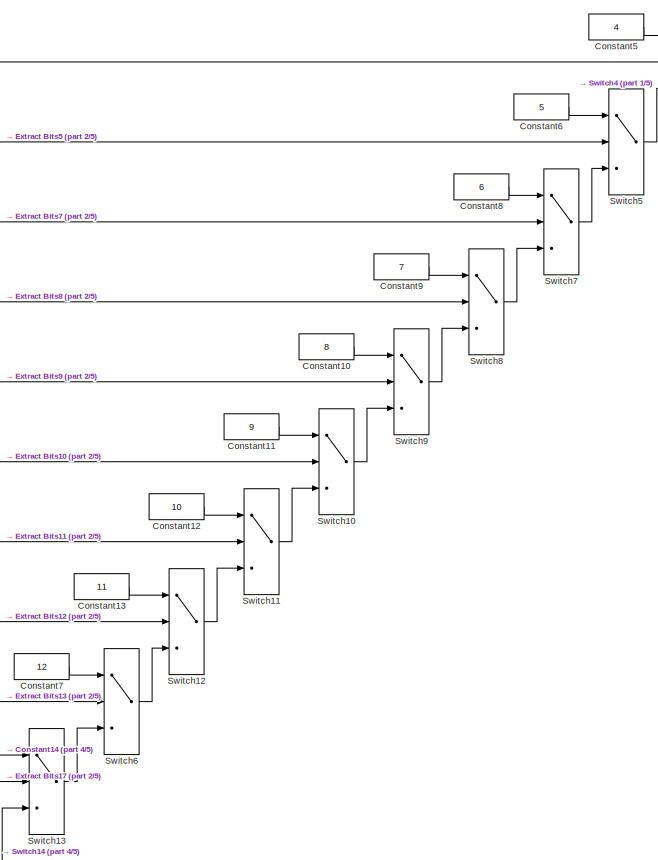
[diagram: LogAddressing/fxpt_lzc_W32/LZC32 - part 3/5, top right region]
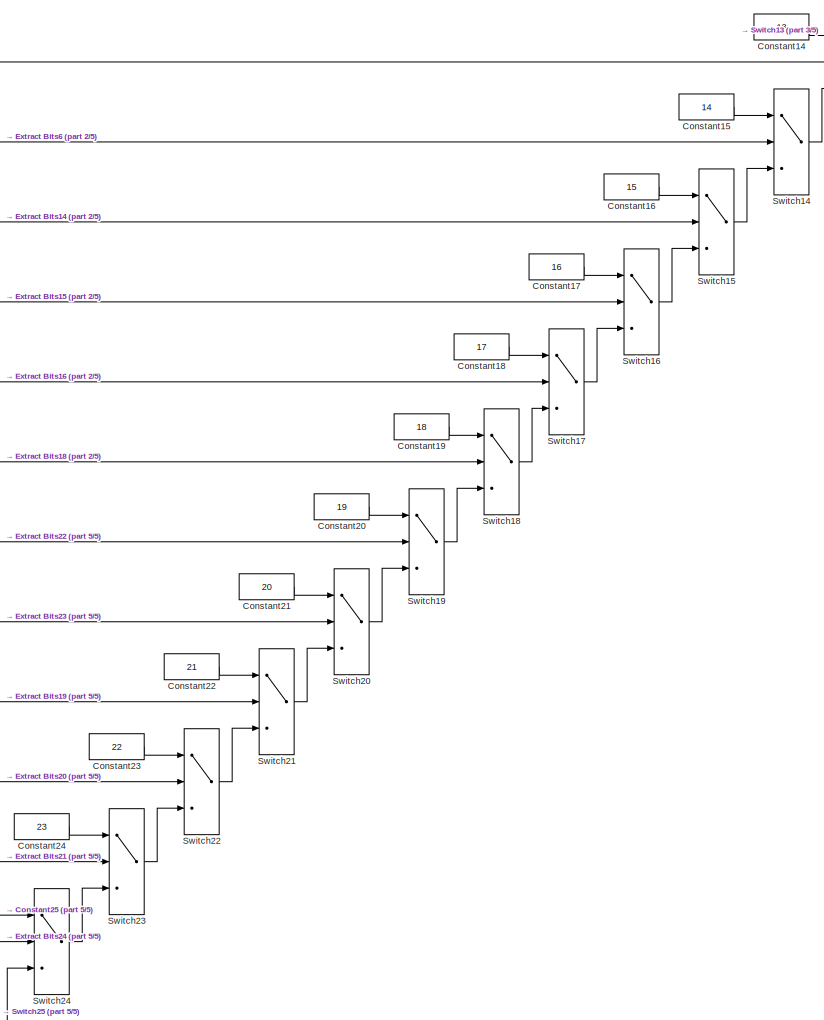
[diagram: LogAddressing/fxpt_lzc_W32/LZC32 - part 4/5, central region]
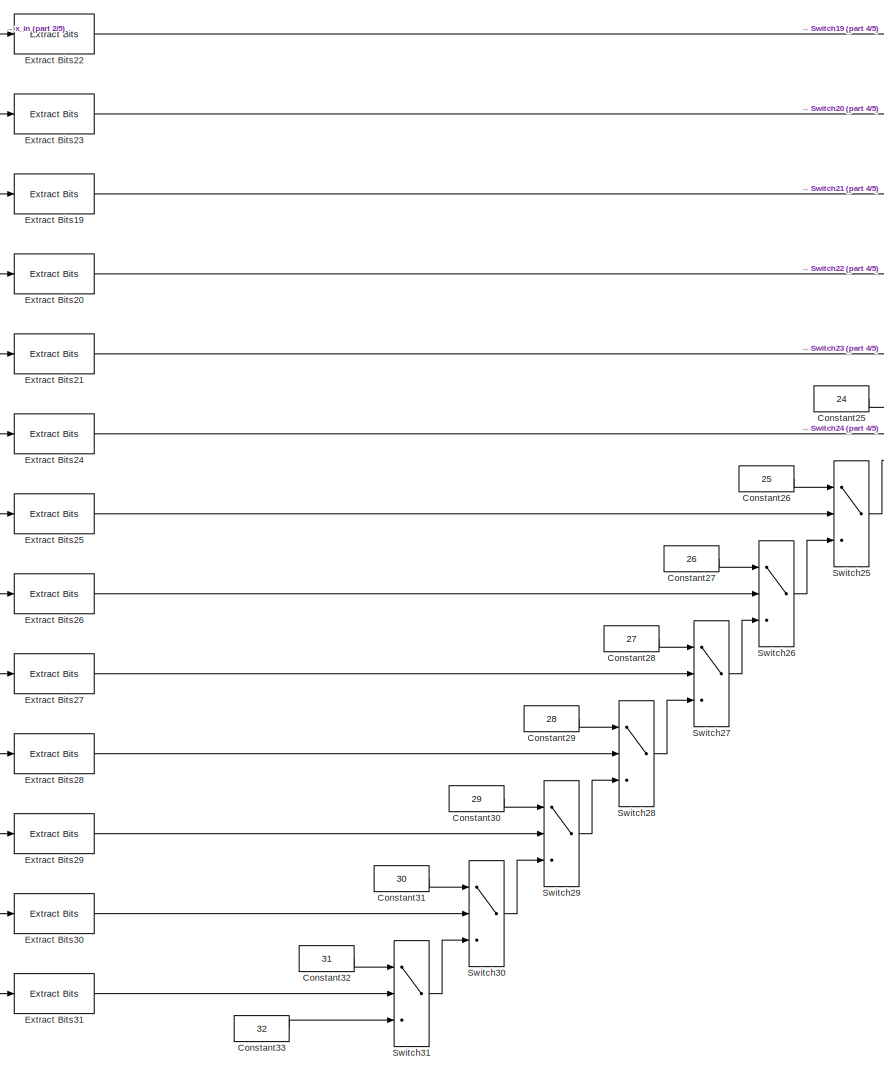
[diagram: LogAddressing/fxpt_lzc_W32/LZC32 - part 5/5, bottom left region]
BLOCK [SubSystem] LogAddressing/fxpt_lzc_W32/LZC32
  Ports = [1, 1]
  RequestExecContextInheritance = off
  TreatAsAtomicUnit = on
BLOCK [Constant] LogAddressing/fxpt_lzc_W32/LZC32/Constant1
  OutDataTypeStr = fixdt(0,6,0)
  SampleTime = Ts_system
BLOCK [Constant] LogAddressing/fxpt_lzc_W32/LZC32/Constant10
  OutDataTypeStr = fixdt(0,6,0)
  SampleTime = Ts_system
  Value = 8
BLOCK [Constant] LogAddressing/fxpt_lzc_W32/LZC32/Constant11
  OutDataTypeStr = fixdt(0,6,0)
  SampleTime = Ts_system
  Value = 9
BLOCK [Constant] LogAddressing/fxpt_lzc_W32/LZC32/Constant12
  OutDataTypeStr = fixdt(0,6,0)
  SampleTime = Ts_system
  Value = 10
BLOCK [Constant] LogAddressing/fxpt_lzc_W32/LZC32/Constant13
  OutDataTypeStr = fixdt(0,6,0)
  SampleTime = Ts_system
  Value = 11
BLOCK [Constant] LogAddressing/fxpt_lzc_W32/LZC32/Constant14
  OutDataTypeStr = fixdt(0,6,0)
  SampleTime = Ts_system
  Value = 13
BLOCK [Constant] LogAddressing/fxpt_lzc_W32/LZC32/Constant15
  OutDataTypeStr = fixdt(0,6,0)
  SampleTime = Ts_system
  Value = 14
BLOCK [Constant] LogAddressing/fxpt_lzc_W32/LZC32/Constant16
  OutDataTypeStr = fixdt(0,6,0)
  SampleTime = Ts_system
  Value = 15
BLOCK [Constant] LogAddressing/fxpt_lzc_W32/LZC32/Constant17
  OutDataTypeStr = fixdt(0,6,0)
  SampleTime = Ts_system
  Value = 16
BLOCK [Constant] LogAddressing/fxpt_lzc_W32/LZC32/Constant18
  OutDataTypeStr = fixdt(0,6,0)
  SampleTime = Ts_system
  Value = 17
BLOCK [Constant] LogAddressing/fxpt_lzc_W32/LZC32/Constant19
  OutDataTypeStr = fixdt(0,6,0)
  SampleTime = Ts_system
  Value = 18
BLOCK [Constant] LogAddressing/fxpt_lzc_W32/LZC32/Constant2
  OutDataTypeStr = fixdt(0,6,0)
  SampleTime = Ts_system
  Value = 0
BLOCK [Constant] LogAddressing/fxpt_lzc_W32/LZC32/Constant20
  OutDataTypeStr = fixdt(0,6,0)
  SampleTime = Ts_system
  Value = 19
BLOCK [Constant] LogAddressing/fxpt_lzc_W32/LZC32/Constant21
  OutDataTypeStr = fixdt(0,6,0)
  SampleTime = Ts_system
  Value = 20
BLOCK [Constant] LogAddressing/fxpt_lzc_W32/LZC32/Constant22
  OutDataTypeStr = fixdt(0,6,0)
  SampleTime = Ts_system
  Value = 21
BLOCK [Constant] LogAddressing/fxpt_lzc_W32/LZC32/Constant23
  OutDataTypeStr = fixdt(0,6,0)
  SampleTime = Ts_system
  Value = 22
BLOCK [Constant] LogAddressing/fxpt_lzc_W32/LZC32/Constant24
  OutDataTypeStr = fixdt(0,6,0)
  SampleTime = Ts_system
  Value = 23
BLOCK [Constant] LogAddressing/fxpt_lzc_W32/LZC32/Constant25
  OutDataTypeStr = fixdt(0,6,0)
  SampleTime = Ts_system
  Value = 24
BLOCK [Constant] LogAddressing/fxpt_lzc_W32/LZC32/Constant26
  OutDataTypeStr = fixdt(0,6,0)
  SampleTime = Ts_system
  Value = 25
BLOCK [Constant] LogAddressing/fxpt_lzc_W32/LZC32/Constant27
  OutDataTypeStr = fixdt(0,6,0)
  SampleTime = Ts_system
  Value = 26
BLOCK [Constant] LogAddressing/fxpt_lzc_W32/LZC32/Constant28
  OutDataTypeStr = fixdt(0,6,0)
  SampleTime = Ts_system
  Value = 27
BLOCK [Constant] LogAddressing/fxpt_lzc_W32/LZC32/Constant29
  OutDataTypeStr = fixdt(0,6,0)
  SampleTime = Ts_system
  Value = 28
BLOCK [Constant] LogAddressing/fxpt_lzc_W32/LZC32/Constant3
  OutDataTypeStr = fixdt(0,6,0)
  SampleTime = Ts_system
  Value = 2
BLOCK [Constant] LogAddressing/fxpt_lzc_W32/LZC32/Constant30
  OutDataTypeStr = fixdt(0,6,0)
  SampleTime = Ts_system
  Value = 29
BLOCK [Constant] LogAddressing/fxpt_lzc_W32/LZC32/Constant31
  OutDataTypeStr = fixdt(0,6,0)
  SampleTime = Ts_system
  Value = 30
BLOCK [Constant] LogAddressing/fxpt_lzc_W32/LZC32/Constant32
  OutDataTypeStr = fixdt(0,6,0)
  SampleTime = Ts_system
  Value = 31
BLOCK [Constant] LogAddressing/fxpt_lzc_W32/LZC32/Constant33
  OutDataTypeStr = fixdt(0,6,0)
  SampleTime = Ts_system
  Value = 32
BLOCK [Constant] LogAddressing/fxpt_lzc_W32/LZC32/Constant4
  OutDataTypeStr = fixdt(0,6,0)
  SampleTime = Ts_system
  Value = 3
BLOCK [Constant] LogAddressing/fxpt_lzc_W32/LZC32/Constant5
  OutDataTypeStr = fixdt(0,6,0)
  SampleTime = Ts_system
  Value = 4
BLOCK [Constant] LogAddressing/fxpt_lzc_W32/LZC32/Constant6
  OutDataTypeStr = fixdt(0,6,0)
  SampleTime = Ts_system
  Value = 5
BLOCK [Constant] LogAddressing/fxpt_lzc_W32/LZC32/Constant7
  OutDataTypeStr = fixdt(0,6,0)
  SampleTime = Ts_system
  Value = 12
BLOCK [Constant] LogAddressing/fxpt_lzc_W32/LZC32/Constant8
  OutDataTypeStr = fixdt(0,6,0)
  SampleTime = Ts_system
  Value = 6
BLOCK [Constant] LogAddressing/fxpt_lzc_W32/LZC32/Constant9
  OutDataTypeStr = fixdt(0,6,0)
  SampleTime = Ts_system
  Value = 7
BLOCK [Delay] LogAddressing/fxpt_lzc_W32/LZC32/Delay
  DelayLength = 1
  InitialCondition = 3
  InputPortMap = u0
  Ports = [1, 1]
  SampleTime = Ts_system
BLOCK [Reference] LogAddressing/fxpt_lzc_W32/LZC32/Extract Bits  REF=simulink/Logic and Bit
Operations/Extract Bits
  Ports = [1, 1]
  SourceBlock = simulink/Logic and Bit\nOperations/Extract Bits
  SourceProductBaseCode = SL
  SourceProductName = Simulink
  SourceType = Extract Bits
BLOCK [Reference] LogAddressing/fxpt_lzc_W32/LZC32/Extract Bits1  REF=simulink/Logic and Bit
Operations/Extract Bits
  Ports = [1, 1]
  SourceBlock = simulink/Logic and Bit\nOperations/Extract Bits
  SourceProductBaseCode = SL
  SourceProductName = Simulink
  SourceType = Extract Bits
BLOCK [Reference] LogAddressing/fxpt_lzc_W32/LZC32/Extract Bits10  REF=simulink/Logic and Bit
Operations/Extract Bits
  Ports = [1, 1]
  SourceBlock = simulink/Logic and Bit\nOperations/Extract Bits
  SourceProductBaseCode = SL
  SourceProductName = Simulink
  SourceType = Extract Bits
BLOCK [Reference] LogAddressing/fxpt_lzc_W32/LZC32/Extract Bits11  REF=simulink/Logic and Bit
Operations/Extract Bits
  Ports = [1, 1]
  SourceBlock = simulink/Logic and Bit\nOperations/Extract Bits
  SourceProductBaseCode = SL
  SourceProductName = Simulink
  SourceType = Extract Bits
BLOCK [Reference] LogAddressing/fxpt_lzc_W32/LZC32/Extract Bits12  REF=simulink/Logic and Bit
Operations/Extract Bits
  Ports = [1, 1]
  SourceBlock = simulink/Logic and Bit\nOperations/Extract Bits
  SourceProductBaseCode = SL
  SourceProductName = Simulink
  SourceType = Extract Bits
BLOCK [Reference] LogAddressing/fxpt_lzc_W32/LZC32/Extract Bits13  REF=simulink/Logic and Bit
Operations/Extract Bits
  Ports = [1, 1]
  SourceBlock = simulink/Logic and Bit\nOperations/Extract Bits
  SourceProductBaseCode = SL
  SourceProductName = Simulink
  SourceType = Extract Bits
BLOCK [Reference] LogAddressing/fxpt_lzc_W32/LZC32/Extract Bits14  REF=simulink/Logic and Bit
Operations/Extract Bits
  Ports = [1, 1]
  SourceBlock = simulink/Logic and Bit\nOperations/Extract Bits
  SourceProductBaseCode = SL
  SourceProductName = Simulink
  SourceType = Extract Bits
BLOCK [Reference] LogAddressing/fxpt_lzc_W32/LZC32/Extract Bits15  REF=simulink/Logic and Bit
Operations/Extract Bits
  Ports = [1, 1]
  SourceBlock = simulink/Logic and Bit\nOperations/Extract Bits
  SourceProductBaseCode = SL
  SourceProductName = Simulink
  SourceType = Extract Bits
BLOCK [Reference] LogAddressing/fxpt_lzc_W32/LZC32/Extract Bits16  REF=simulink/Logic and Bit
Operations/Extract Bits
  Ports = [1, 1]
  SourceBlock = simulink/Logic and Bit\nOperations/Extract Bits
  SourceProductBaseCode = SL
  SourceProductName = Simulink
  SourceType = Extract Bits
BLOCK [Reference] LogAddressing/fxpt_lzc_W32/LZC32/Extract Bits17  REF=simulink/Logic and Bit
Operations/Extract Bits
  Ports = [1, 1]
  SourceBlock = simulink/Logic and Bit\nOperations/Extract Bits
  SourceProductBaseCode = SL
  SourceProductName = Simulink
  SourceType = Extract Bits
BLOCK [Reference] LogAddressing/fxpt_lzc_W32/LZC32/Extract Bits18  REF=simulink/Logic and Bit
Operations/Extract Bits
  Ports = [1, 1]
  SourceBlock = simulink/Logic and Bit\nOperations/Extract Bits
  SourceProductBaseCode = SL
  SourceProductName = Simulink
  SourceType = Extract Bits
BLOCK [Reference] LogAddressing/fxpt_lzc_W32/LZC32/Extract Bits19  REF=simulink/Logic and Bit
Operations/Extract Bits
  Ports = [1, 1]
  SourceBlock = simulink/Logic and Bit\nOperations/Extract Bits
  SourceProductBaseCode = SL
  SourceProductName = Simulink
  SourceType = Extract Bits
BLOCK [Reference] LogAddressing/fxpt_lzc_W32/LZC32/Extract Bits2  REF=simulink/Logic and Bit
Operations/Extract Bits
  Ports = [1, 1]
  SourceBlock = simulink/Logic and Bit\nOperations/Extract Bits
  SourceProductBaseCode = SL
  SourceProductName = Simulink
  SourceType = Extract Bits
BLOCK [Reference] LogAddressing/fxpt_lzc_W32/LZC32/Extract Bits20  REF=simulink/Logic and Bit
Operations/Extract Bits
  Ports = [1, 1]
  SourceBlock = simulink/Logic and Bit\nOperations/Extract Bits
  SourceProductBaseCode = SL
  SourceProductName = Simulink
  SourceType = Extract Bits
BLOCK [Reference] LogAddressing/fxpt_lzc_W32/LZC32/Extract Bits21  REF=simulink/Logic and Bit
Operations/Extract Bits
  Ports = [1, 1]
  SourceBlock = simulink/Logic and Bit\nOperations/Extract Bits
  SourceProductBaseCode = SL
  SourceProductName = Simulink
  SourceType = Extract Bits
BLOCK [Reference] LogAddressing/fxpt_lzc_W32/LZC32/Extract Bits22  REF=simulink/Logic and Bit
Operations/Extract Bits
  Ports = [1, 1]
  SourceBlock = simulink/Logic and Bit\nOperations/Extract Bits
  SourceProductBaseCode = SL
  SourceProductName = Simulink
  SourceType = Extract Bits
BLOCK [Reference] LogAddressing/fxpt_lzc_W32/LZC32/Extract Bits23  REF=simulink/Logic and Bit
Operations/Extract Bits
  Ports = [1, 1]
  SourceBlock = simulink/Logic and Bit\nOperations/Extract Bits
  SourceProductBaseCode = SL
  SourceProductName = Simulink
  SourceType = Extract Bits
BLOCK [Reference] LogAddressing/fxpt_lzc_W32/LZC32/Extract Bits24  REF=simulink/Logic and Bit
Operations/Extract Bits
  Ports = [1, 1]
  SourceBlock = simulink/Logic and Bit\nOperations/Extract Bits
  SourceProductBaseCode = SL
  SourceProductName = Simulink
  SourceType = Extract Bits
BLOCK [Reference] LogAddressing/fxpt_lzc_W32/LZC32/Extract Bits25  REF=simulink/Logic and Bit
Operations/Extract Bits
  Ports = [1, 1]
  SourceBlock = simulink/Logic and Bit\nOperations/Extract Bits
  SourceProductBaseCode = SL
  SourceProductName = Simulink
  SourceType = Extract Bits
BLOCK [Reference] LogAddressing/fxpt_lzc_W32/LZC32/Extract Bits26  REF=simulink/Logic and Bit
Operations/Extract Bits
  Ports = [1, 1]
  SourceBlock = simulink/Logic and Bit\nOperations/Extract Bits
  SourceProductBaseCode = SL
  SourceProductName = Simulink
  SourceType = Extract Bits
BLOCK [Reference] LogAddressing/fxpt_lzc_W32/LZC32/Extract Bits27  REF=simulink/Logic and Bit
Operations/Extract Bits
  Ports = [1, 1]
  SourceBlock = simulink/Logic and Bit\nOperations/Extract Bits
  SourceProductBaseCode = SL
  SourceProductName = Simulink
  SourceType = Extract Bits
BLOCK [Reference] LogAddressing/fxpt_lzc_W32/LZC32/Extract Bits28  REF=simulink/Logic and Bit
Operations/Extract Bits
  Ports = [1, 1]
  SourceBlock = simulink/Logic and Bit\nOperations/Extract Bits
  SourceProductBaseCode = SL
  SourceProductName = Simulink
  SourceType = Extract Bits
BLOCK [Reference] LogAddressing/fxpt_lzc_W32/LZC32/Extract Bits29  REF=simulink/Logic and Bit
Operations/Extract Bits
  Ports = [1, 1]
  SourceBlock = simulink/Logic and Bit\nOperations/Extract Bits
  SourceProductBaseCode = SL
  SourceProductName = Simulink
  SourceType = Extract Bits
BLOCK [Reference] LogAddressing/fxpt_lzc_W32/LZC32/Extract Bits3  REF=simulink/Logic and Bit
Operations/Extract Bits
  Ports = [1, 1]
  SourceBlock = simulink/Logic and Bit\nOperations/Extract Bits
  SourceProductBaseCode = SL
  SourceProductName = Simulink
  SourceType = Extract Bits
BLOCK [Reference] LogAddressing/fxpt_lzc_W32/LZC32/Extract Bits30  REF=simulink/Logic and Bit
Operations/Extract Bits
  Ports = [1, 1]
  SourceBlock = simulink/Logic and Bit\nOperations/Extract Bits
  SourceProductBaseCode = SL
  SourceProductName = Simulink
  SourceType = Extract Bits
BLOCK [Reference] LogAddressing/fxpt_lzc_W32/LZC32/Extract Bits31  REF=simulink/Logic and Bit
Operations/Extract Bits
  Ports = [1, 1]
  SourceBlock = simulink/Logic and Bit\nOperations/Extract Bits
  SourceProductBaseCode = SL
  SourceProductName = Simulink
  SourceType = Extract Bits
BLOCK [Reference] LogAddressing/fxpt_lzc_W32/LZC32/Extract Bits4  REF=simulink/Logic and Bit
Operations/Extract Bits
  Ports = [1, 1]
  SourceBlock = simulink/Logic and Bit\nOperations/Extract Bits
  SourceProductBaseCode = SL
  SourceProductName = Simulink
  SourceType = Extract Bits
BLOCK [Reference] LogAddressing/fxpt_lzc_W32/LZC32/Extract Bits5  REF=simulink/Logic and Bit
Operations/Extract Bits
  Ports = [1, 1]
  SourceBlock = simulink/Logic and Bit\nOperations/Extract Bits
  SourceProductBaseCode = SL
  SourceProductName = Simulink
  SourceType = Extract Bits
BLOCK [Reference] LogAddressing/fxpt_lzc_W32/LZC32/Extract Bits6  REF=simulink/Logic and Bit
Operations/Extract Bits
  Ports = [1, 1]
  SourceBlock = simulink/Logic and Bit\nOperations/Extract Bits
  SourceProductBaseCode = SL
  SourceProductName = Simulink
  SourceType = Extract Bits
BLOCK [Reference] LogAddressing/fxpt_lzc_W32/LZC32/Extract Bits7  REF=simulink/Logic and Bit
Operations/Extract Bits
  Ports = [1, 1]
  SourceBlock = simulink/Logic and Bit\nOperations/Extract Bits
  SourceProductBaseCode = SL
  SourceProductName = Simulink
  SourceType = Extract Bits
BLOCK [Reference] LogAddressing/fxpt_lzc_W32/LZC32/Extract Bits8  REF=simulink/Logic and Bit
Operations/Extract Bits
  Ports = [1, 1]
  SourceBlock = simulink/Logic and Bit\nOperations/Extract Bits
  SourceProductBaseCode = SL
  SourceProductName = Simulink
  SourceType = Extract Bits
BLOCK [Reference] LogAddressing/fxpt_lzc_W32/LZC32/Extract Bits9  REF=simulink/Logic and Bit
Operations/Extract Bits
  Ports = [1, 1]
  SourceBlock = simulink/Logic and Bit\nOperations/Extract Bits
  SourceProductBaseCode = SL
  SourceProductName = Simulink
  SourceType = Extract Bits
BLOCK [Switch] LogAddressing/fxpt_lzc_W32/LZC32/Switch
  Criteria = u2 ~= 0
  InputSameDT = off
  SaturateOnIntegerOverflow = off
BLOCK [Switch] LogAddressing/fxpt_lzc_W32/LZC32/Switch1
  Criteria = u2 ~= 0
  InputSameDT = off
  SaturateOnIntegerOverflow = off
BLOCK [Switch] LogAddressing/fxpt_lzc_W32/LZC32/Switch10
  Criteria = u2 ~= 0
  InputSameDT = off
  SaturateOnIntegerOverflow = off
BLOCK [Switch] LogAddressing/fxpt_lzc_W32/LZC32/Switch11
  Criteria = u2 ~= 0
  InputSameDT = off
  SaturateOnIntegerOverflow = off
BLOCK [Switch] LogAddressing/fxpt_lzc_W32/LZC32/Switch12
  Criteria = u2 ~= 0
  InputSameDT = off
  SaturateOnIntegerOverflow = off
BLOCK [Switch] LogAddressing/fxpt_lzc_W32/LZC32/Switch13
  Criteria = u2 ~= 0
  InputSameDT = off
  SaturateOnIntegerOverflow = off
BLOCK [Switch] LogAddressing/fxpt_lzc_W32/LZC32/Switch14
  Criteria = u2 ~= 0
  InputSameDT = off
  SaturateOnIntegerOverflow = off
BLOCK [Switch] LogAddressing/fxpt_lzc_W32/LZC32/Switch15
  Criteria = u2 ~= 0
  InputSameDT = off
  SaturateOnIntegerOverflow = off
BLOCK [Switch] LogAddressing/fxpt_lzc_W32/LZC32/Switch16
  Criteria = u2 ~= 0
  InputSameDT = off
  SaturateOnIntegerOverflow = off
BLOCK [Switch] LogAddressing/fxpt_lzc_W32/LZC32/Switch17
  Criteria = u2 ~= 0
  InputSameDT = off
  SaturateOnIntegerOverflow = off
BLOCK [Switch] LogAddressing/fxpt_lzc_W32/LZC32/Switch18
  Criteria = u2 ~= 0
  InputSameDT = off
  SaturateOnIntegerOverflow = off
BLOCK [Switch] LogAddressing/fxpt_lzc_W32/LZC32/Switch19
  Criteria = u2 ~= 0
  InputSameDT = off
  SaturateOnIntegerOverflow = off
BLOCK [Switch] LogAddressing/fxpt_lzc_W32/LZC32/Switch2
  Criteria = u2 ~= 0
  InputSameDT = off
  SaturateOnIntegerOverflow = off
BLOCK [Switch] LogAddressing/fxpt_lzc_W32/LZC32/Switch20
  Criteria = u2 ~= 0
  InputSameDT = off
  SaturateOnIntegerOverflow = off
BLOCK [Switch] LogAddressing/fxpt_lzc_W32/LZC32/Switch21
  Criteria = u2 ~= 0
  InputSameDT = off
  SaturateOnIntegerOverflow = off
BLOCK [Switch] LogAddressing/fxpt_lzc_W32/LZC32/Switch22
  Criteria = u2 ~= 0
  InputSameDT = off
  SaturateOnIntegerOverflow = off
BLOCK [Switch] LogAddressing/fxpt_lzc_W32/LZC32/Switch23
  Criteria = u2 ~= 0
  InputSameDT = off
  SaturateOnIntegerOverflow = off
BLOCK [Switch] LogAddressing/fxpt_lzc_W32/LZC32/Switch24
  Criteria = u2 ~= 0
  InputSameDT = off
  SaturateOnIntegerOverflow = off
BLOCK [Switch] LogAddressing/fxpt_lzc_W32/LZC32/Switch25
  Criteria = u2 ~= 0
  InputSameDT = off
  SaturateOnIntegerOverflow = off
BLOCK [Switch] LogAddressing/fxpt_lzc_W32/LZC32/Switch26
  Criteria = u2 ~= 0
  InputSameDT = off
  SaturateOnIntegerOverflow = off
BLOCK [Switch] LogAddressing/fxpt_lzc_W32/LZC32/Switch27
  Criteria = u2 ~= 0
  InputSameDT = off
  SaturateOnIntegerOverflow = off
BLOCK [Switch] LogAddressing/fxpt_lzc_W32/LZC32/Switch28
  Criteria = u2 ~= 0
  InputSameDT = off
  SaturateOnIntegerOverflow = off
BLOCK [Switch] LogAddressing/fxpt_lzc_W32/LZC32/Switch29
  Criteria = u2 ~= 0
  InputSameDT = off
  SaturateOnIntegerOverflow = off
BLOCK [Switch] LogAddressing/fxpt_lzc_W32/LZC32/Switch3
  Criteria = u2 ~= 0
  InputSameDT = off
  SaturateOnIntegerOverflow = off
BLOCK [Switch] LogAddressing/fxpt_lzc_W32/LZC32/Switch30
  Criteria = u2 ~= 0
  InputSameDT = off
  SaturateOnIntegerOverflow = off
BLOCK [Switch] LogAddressing/fxpt_lzc_W32/LZC32/Switch31
  Criteria = u2 ~= 0
  InputSameDT = off
  SaturateOnIntegerOverflow = off
BLOCK [Switch] LogAddressing/fxpt_lzc_W32/LZC32/Switch4
  Criteria = u2 ~= 0
  InputSameDT = off
  SaturateOnIntegerOverflow = off
BLOCK [Switch] LogAddressing/fxpt_lzc_W32/LZC32/Switch5
  Criteria = u2 ~= 0
  InputSameDT = off
  SaturateOnIntegerOverflow = off
BLOCK [Switch] LogAddressing/fxpt_lzc_W32/LZC32/Switch6
  Criteria = u2 ~= 0
  InputSameDT = off
  SaturateOnIntegerOverflow = off
BLOCK [Switch] LogAddressing/fxpt_lzc_W32/LZC32/Switch7
  Criteria = u2 ~= 0
  InputSameDT = off
  SaturateOnIntegerOverflow = off
BLOCK [Switch] LogAddressing/fxpt_lzc_W32/LZC32/Switch8
  Criteria = u2 ~= 0
  InputSameDT = off
  SaturateOnIntegerOverflow = off
BLOCK [Switch] LogAddressing/fxpt_lzc_W32/LZC32/Switch9
  Criteria = u2 ~= 0
  InputSameDT = off
  SaturateOnIntegerOverflow = off
BLOCK [Outport] LogAddressing/fxpt_lzc_W32/LZC32/lzc_out
  IconDisplay = Port number
BLOCK [Inport] LogAddressing/fxpt_lzc_W32/LZC32/x_in
  IconDisplay = Port number
BLOCK [Outport] LogAddressing/fxpt_lzc_W32/lzc_out
  IconDisplay = Port number
BLOCK [Inport] LogAddressing/fxpt_lzc_W32/x_in
  IconDisplay = Port number
BLOCK [Inport] LogAddressing/x_in
  IconDisplay = Port number
BLOCK [SubSystem] Low_Gain_Table
  AncestorBlock = hdlsllibUNLOCKED/HDL RAMs/Dual Port RAM
  Ports = [4, 2]
  RequestExecContextInheritance = off
BLOCK [DataTypeConversion] Low_Gain_Table/Data Type Conversion
  OutDataTypeStr = fixdt(0,16,0)
  RndMeth = Floor
  SaturateOnIntegerOverflow = off
BLOCK [DataTypeConversion] Low_Gain_Table/Data Type Conversion1
  OutDataTypeStr = fixdt(0,16,0)
  RndMeth = Floor
  SaturateOnIntegerOverflow = off
BLOCK [SignalSpecification] Low_Gain_Table/Signal Specification
  Dimensions = 1
  OutDataTypeStr = fixdt(0,ram_size,0)
BLOCK [SignalSpecification] Low_Gain_Table/Signal Specification1
  Dimensions = 1
  OutDataTypeStr = fixdt(0,ram_size,0)
BLOCK [UnitDelay] Low_Gain_Table/ram
  HasFrameUpgradeWarning = on
  InitialCondition = Table_Fill_t(1: 2^(M_bits+4) )
  SampleTime = -1
BLOCK [UnitDelay] Low_Gain_Table/ram_data
  HasFrameUpgradeWarning = on
  SampleTime = -1
BLOCK [Inport] Low_Gain_Table/rd_addr
  IconDisplay = Port number
  Port = 4
BLOCK [Outport] Low_Gain_Table/rd_dout
  IconDisplay = Port number
  Port = 2
BLOCK [Selector] Low_Gain_Table/select
  IndexMode = Zero-based
  IndexOptions = Index vector (port)
  Indices = [1 3]
  InputPortWidth = 2^ram_size
  OutputSizes = 1
  Ports = [2, 1]
BLOCK [Selector] Low_Gain_Table/select1
  IndexMode = Zero-based
  IndexOptions = Index vector (port)
  Indices = [1 3]
  InputPortWidth = 2^ram_size
  OutputSizes = 1
  Ports = [2, 1]
BLOCK [Switch] Low_Gain_Table/switch
  Criteria = u2 ~= 0
  InputSameDT = off
  SaturateOnIntegerOverflow = off
BLOCK [Inport] Low_Gain_Table/wr_addr
  IconDisplay = Port number
  Port = 2
BLOCK [UnitDelay] Low_Gain_Table/wr_addr_d
  HasFrameUpgradeWarning = on
  SampleTime = -1
BLOCK [Inport] Low_Gain_Table/wr_din
  IconDisplay = Port number
BLOCK [Outport] Low_Gain_Table/wr_dout
  IconDisplay = Port number
BLOCK [Inport] Low_Gain_Table/wr_en
  IconDisplay = Port number
  OutDataTypeStr = boolean
  Port = 3
BLOCK [Assignment] Low_Gain_Table/wr_port
  IndexMode = Zero-based
  IndexOptions = Index vector (port)
  Indices = 1
  OutputSizes = [1 1]
  Ports = [3, 1]
BLOCK [Sum] Subtract
  InputSameDT = off
  Ports = [2, 1]
  SaturateOnIntegerOverflow = off
BLOCK [Inport] Table_Fill
  IconDisplay = Port number
  OutDataTypeStr = fixdt(1,32,28)
  PortDimensions = 1
  SampleTime = [2.0833333333333333e-05,0]
  SamplingMode = Sample based
  SignalType = real
BLOCK [Inport] Table_Fill_Valid
  IconDisplay = Port number
  OutDataTypeStr = boolean
  Port = 3
  PortDimensions = 1
  SampleTime = [2.0833333333333333e-05,0]
  SamplingMode = Sample based
  SignalType = real
BLOCK [Terminator] Terminator
BLOCK [Terminator] Terminator1
BLOCK [UnitDelay] Unit Delay1
  HasFrameUpgradeWarning = on
  InitialCondition = 1
  SampleTime = -1
BLOCK [UnitDelay] Unit Delay2
  HasFrameUpgradeWarning = on
  InitialCondition = 1
  SampleTime = -1
BLOCK [UnitDelay] Unit Delay3
  HasFrameUpgradeWarning = on
  InitialCondition = 1
  SampleTime = -1
BLOCK [Inport] Write_Addr
  IconDisplay = Port number
  OutDataTypeStr = fixdt(0,9,0)
  Port = 2
  PortDimensions = 1
  SampleTime = [2.0833333333333333e-05,0]
  SamplingMode = Sample based
  SignalType = real
ANNOTATION (root): Compression: Assume the input is a single band coming from the system. Goals: - Take in a single point - compare the volume to a known hard cap for the data - attenuate the signal if it's above a certain threshold - the distance above the threshold should be cut in dB by a ratio R - return the output point at the same sample rate received
ANNOTATION (root): Data_In assumed before applied prescription FIR
ANNOTATION Linear_Approximation: Check if |X_in| is less than x_low, if true, use the low gain instead of linear interpolation
ANNOTATION Linear_Approximation: NOTE: When NShifts would be > 15, the output gain is slightly too small. This is marginal as this volume is below the threshold, but for consistency, all gains on volumes below the threshold will be set to x_low value, the gain applied to an input of 2^-15 Outputs above 85 dBA will be clipped to 85 dBA.
ANNOTATION LogAddressing: EFFECTIVELY shift_left(x_in,NShifts)
NET Abs:1 -> LogAddressing:1, Unit Delay2:1
LINE Constant:1 -> Subtract:2
LINE Data_In:1 -> Abs:1
LINE High_Gain_Table:1 -> Terminator1:1
LINE High_Gain_Table:2 -> Linear_Approximation:1
LINE Linear_Approximation/Bit Rotate1:1 -> Linear_Approximation/Product1:1
LINE Linear_Approximation/Bit Slice1:1 -> Linear_Approximation/Product1:2
LINE Linear_Approximation/Bit Slice:1 -> Linear_Approximation/Bitwise Operator:1
NET Linear_Approximation/Bitwise Operator:1 -> Linear_Approximation/LSL(N):1, Linear_Approximation/LSR(N):1
LINE Linear_Approximation/Compare To Constant:1 -> Linear_Approximation/Switch:2
LINE Linear_Approximation/Constant2:1 -> Linear_Approximation/LSL(N):2
LINE Linear_Approximation/Constant:1 -> Linear_Approximation/LSR(N):2
LINE Linear_Approximation/Data Type Conversion1:1 -> Linear_Approximation/Switch:3
LINE Linear_Approximation/Data Type Conversion:1 -> Linear_Approximation/Subtract3:2
LINE Linear_Approximation/G_high:1 -> Linear_Approximation/Subtract:2
NET Linear_Approximation/G_low:1 -> Linear_Approximation/Subtract3:1, Linear_Approximation/Subtract:1, Linear_Approximation/Switch:1
LINE Linear_Approximation/LSL(N)/Bit Rotate10:1 -> Linear_Approximation/LSL(N)/Multiport Switch:13
LINE Linear_Approximation/LSL(N)/Bit Rotate11:1 -> Linear_Approximation/LSL(N)/Multiport Switch:14
LINE Linear_Approximation/LSL(N)/Bit Rotate12:1 -> Linear_Approximation/LSL(N)/Multiport Switch:15
LINE Linear_Approximation/LSL(N)/Bit Rotate13:1 -> Linear_Approximation/LSL(N)/Multiport Switch:16
LINE Linear_Approximation/LSL(N)/Bit Rotate14:1 -> Linear_Approximation/LSL(N)/Multiport Switch:17
LINE Linear_Approximation/LSL(N)/Bit Rotate1:1 -> Linear_Approximation/LSL(N)/Multiport Switch:4
LINE Linear_Approximation/LSL(N)/Bit Rotate2:1 -> Linear_Approximation/LSL(N)/Multiport Switch:5
LINE Linear_Approximation/LSL(N)/Bit Rotate3:1 -> Linear_Approximation/LSL(N)/Multiport Switch:6
LINE Linear_Approximation/LSL(N)/Bit Rotate4:1 -> Linear_Approximation/LSL(N)/Multiport Switch:7
LINE Linear_Approximation/LSL(N)/Bit Rotate5:1 -> Linear_Approximation/LSL(N)/Multiport Switch:8
LINE Linear_Approximation/LSL(N)/Bit Rotate6:1 -> Linear_Approximation/LSL(N)/Multiport Switch:9
LINE Linear_Approximation/LSL(N)/Bit Rotate7:1 -> Linear_Approximation/LSL(N)/Multiport Switch:10
LINE Linear_Approximation/LSL(N)/Bit Rotate8:1 -> Linear_Approximation/LSL(N)/Multiport Switch:11
LINE Linear_Approximation/LSL(N)/Bit Rotate9:1 -> Linear_Approximation/LSL(N)/Multiport Switch:12
LINE Linear_Approximation/LSL(N)/Bit Rotate:1 -> Linear_Approximation/LSL(N)/Multiport Switch:3
LINE Linear_Approximation/LSL(N)/Multiport Switch:1 -> Linear_Approximation/LSL(N)/x_shifted:1
LINE Linear_Approximation/LSL(N)/NShifts:1 -> Linear_Approximation/LSL(N)/Multiport Switch:1
NET Linear_Approximation/LSL(N)/x_in:1 -> Linear_Approximation/LSL(N)/Bit Rotate10:1, Linear_Approximation/LSL(N)/Bit Rotate11:1, Linear_Approximation/LSL(N)/Bit Rotate12:1, Linear_Approximation/LSL(N)/Bit Rotate13:1, Linear_Approximation/LSL(N)/Bit Rotate14:1, Linear_Approximation/LSL(N)/Bit Rotate1:1, Linear_Approximation/LSL(N)/Bit Rotate2:1, Linear_Approximation/LSL(N)/Bit Rotate3:1, Linear_Approximation/LSL(N)/Bit Rotate4:1, Linear_Approximation/LSL(N)/Bit Rotate5:1, Linear_Approximation/LSL(N)/Bit Rotate6:1, Linear_Approximation/LSL(N)/Bit Rotate7:1, Linear_Approximation/LSL(N)/Bit Rotate8:1, Linear_Approximation/LSL(N)/Bit Rotate9:1, Linear_Approximation/LSL(N)/Bit Rotate:1, Linear_Approximation/LSL(N)/Multiport Switch:2
LINE Linear_Approximation/LSL(N):1 -> Linear_Approximation/Product2:2
LINE Linear_Approximation/LSR(N)/Bit Rotate10:1 -> Linear_Approximation/LSR(N)/Multiport Switch:13
LINE Linear_Approximation/LSR(N)/Bit Rotate11:1 -> Linear_Approximation/LSR(N)/Multiport Switch:14
LINE Linear_Approximation/LSR(N)/Bit Rotate12:1 -> Linear_Approximation/LSR(N)/Multiport Switch:15
LINE Linear_Approximation/LSR(N)/Bit Rotate13:1 -> Linear_Approximation/LSR(N)/Multiport Switch:16
LINE Linear_Approximation/LSR(N)/Bit Rotate14:1 -> Linear_Approximation/LSR(N)/Multiport Switch:17
LINE Linear_Approximation/LSR(N)/Bit Rotate1:1 -> Linear_Approximation/LSR(N)/Multiport Switch:4
LINE Linear_Approximation/LSR(N)/Bit Rotate2:1 -> Linear_Approximation/LSR(N)/Multiport Switch:5
LINE Linear_Approximation/LSR(N)/Bit Rotate3:1 -> Linear_Approximation/LSR(N)/Multiport Switch:6
LINE Linear_Approximation/LSR(N)/Bit Rotate4:1 -> Linear_Approximation/LSR(N)/Multiport Switch:7
LINE Linear_Approximation/LSR(N)/Bit Rotate5:1 -> Linear_Approximation/LSR(N)/Multiport Switch:8
LINE Linear_Approximation/LSR(N)/Bit Rotate6:1 -> Linear_Approximation/LSR(N)/Multiport Switch:9
LINE Linear_Approximation/LSR(N)/Bit Rotate7:1 -> Linear_Approximation/LSR(N)/Multiport Switch:10
LINE Linear_Approximation/LSR(N)/Bit Rotate8:1 -> Linear_Approximation/LSR(N)/Multiport Switch:11
LINE Linear_Approximation/LSR(N)/Bit Rotate9:1 -> Linear_Approximation/LSR(N)/Multiport Switch:12
LINE Linear_Approximation/LSR(N)/Bit Rotate:1 -> Linear_Approximation/LSR(N)/Multiport Switch:3
LINE Linear_Approximation/LSR(N)/Multiport Switch:1 -> Linear_Approximation/LSR(N)/x_shifted:1
LINE Linear_Approximation/LSR(N)/NShifts:1 -> Linear_Approximation/LSR(N)/Multiport Switch:1
NET Linear_Approximation/LSR(N)/x_in:1 -> Linear_Approximation/LSR(N)/Bit Rotate10:1, Linear_Approximation/LSR(N)/Bit Rotate11:1, Linear_Approximation/LSR(N)/Bit Rotate12:1, Linear_Approximation/LSR(N)/Bit Rotate13:1, Linear_Approximation/LSR(N)/Bit Rotate14:1, Linear_Approximation/LSR(N)/Bit Rotate1:1, Linear_Approximation/LSR(N)/Bit Rotate2:1, Linear_Approximation/LSR(N)/Bit Rotate3:1, Linear_Approximation/LSR(N)/Bit Rotate4:1, Linear_Approximation/LSR(N)/Bit Rotate5:1, Linear_Approximation/LSR(N)/Bit Rotate6:1, Linear_Approximation/LSR(N)/Bit Rotate7:1, Linear_Approximation/LSR(N)/Bit Rotate8:1, Linear_Approximation/LSR(N)/Bit Rotate9:1, Linear_Approximation/LSR(N)/Bit Rotate:1, Linear_Approximation/LSR(N)/Multiport Switch:2
NET Linear_Approximation/LSR(N):1 -> Linear_Approximation/Bit Rotate1:1, Linear_Approximation/Subtract1:1
LINE Linear_Approximation/Product1:1 -> Linear_Approximation/Subtract1:2
LINE Linear_Approximation/Product2:1 -> Linear_Approximation/Product3:1
LINE Linear_Approximation/Product3:1 -> Linear_Approximation/Data Type Conversion:1
LINE Linear_Approximation/Subtract1:1 -> Linear_Approximation/Subtract2:2
NET Linear_Approximation/Subtract2:1 -> Linear_Approximation/Compare To Constant:1, Linear_Approximation/Product3:2
LINE Linear_Approximation/Subtract3:1 -> Linear_Approximation/Data Type Conversion1:1
LINE Linear_Approximation/Subtract:1 -> Linear_Approximation/Product2:1
LINE Linear_Approximation/Switch:1 -> Linear_Approximation/Unit Delay:1
LINE Linear_Approximation/Unit Delay:1 -> Linear_Approximation/G_Desired:1
NET Linear_Approximation/addr_low:1 -> Linear_Approximation/Bit Slice1:1, Linear_Approximation/Bit Slice:1
LINE Linear_Approximation/|X_in|:1 -> Linear_Approximation/Subtract2:1
LINE Linear_Approximation:1 -> Gain_C_out:1
LINE LogAddressing/Bit Concat:1 -> LogAddressing/Switch1:3
LINE LogAddressing/Bit Slice1:1 -> LogAddressing/Bit Concat:2
NET LogAddressing/Bit Slice:1 -> LogAddressing/Bitwise Operator1:1, LogAddressing/LSL(N):1
LINE LogAddressing/Bitwise Operator1:1 -> LogAddressing/Bit Concat:1
LINE LogAddressing/Compare To Constant1:1 -> LogAddressing/Switch1:2
LINE LogAddressing/Constant1:1 -> LogAddressing/Subtract:2
LINE LogAddressing/Constant6:1 -> LogAddressing/Switch1:1
NET LogAddressing/Data Type Conversion:1 -> LogAddressing/Delay2:1, LogAddressing/fxpt_lzc_W32:1
LINE LogAddressing/Delay2:1 -> LogAddressing/LSL(N):2
LINE LogAddressing/LSL(N)/Bit Rotate10:1 -> LogAddressing/LSL(N)/Multiport Switch:13
LINE LogAddressing/LSL(N)/Bit Rotate11:1 -> LogAddressing/LSL(N)/Multiport Switch:14
LINE LogAddressing/LSL(N)/Bit Rotate12:1 -> LogAddressing/LSL(N)/Multiport Switch:15
LINE LogAddressing/LSL(N)/Bit Rotate13:1 -> LogAddressing/LSL(N)/Multiport Switch:16
LINE LogAddressing/LSL(N)/Bit Rotate14:1 -> LogAddressing/LSL(N)/Multiport Switch:17
LINE LogAddressing/LSL(N)/Bit Rotate1:1 -> LogAddressing/LSL(N)/Multiport Switch:4
LINE LogAddressing/LSL(N)/Bit Rotate2:1 -> LogAddressing/LSL(N)/Multiport Switch:5
LINE LogAddressing/LSL(N)/Bit Rotate3:1 -> LogAddressing/LSL(N)/Multiport Switch:6
LINE LogAddressing/LSL(N)/Bit Rotate4:1 -> LogAddressing/LSL(N)/Multiport Switch:7
LINE LogAddressing/LSL(N)/Bit Rotate5:1 -> LogAddressing/LSL(N)/Multiport Switch:8
LINE LogAddressing/LSL(N)/Bit Rotate6:1 -> LogAddressing/LSL(N)/Multiport Switch:9
LINE LogAddressing/LSL(N)/Bit Rotate7:1 -> LogAddressing/LSL(N)/Multiport Switch:10
LINE LogAddressing/LSL(N)/Bit Rotate8:1 -> LogAddressing/LSL(N)/Multiport Switch:11
LINE LogAddressing/LSL(N)/Bit Rotate9:1 -> LogAddressing/LSL(N)/Multiport Switch:12
LINE LogAddressing/LSL(N)/Bit Rotate:1 -> LogAddressing/LSL(N)/Multiport Switch:3
LINE LogAddressing/LSL(N)/Multiport Switch:1 -> LogAddressing/LSL(N)/x_shifted:1
LINE LogAddressing/LSL(N)/NShifts:1 -> LogAddressing/LSL(N)/Multiport Switch:1
NET LogAddressing/LSL(N)/x_in:1 -> LogAddressing/LSL(N)/Bit Rotate10:1, LogAddressing/LSL(N)/Bit Rotate11:1, LogAddressing/LSL(N)/Bit Rotate12:1, LogAddressing/LSL(N)/Bit Rotate13:1, LogAddressing/LSL(N)/Bit Rotate14:1, LogAddressing/LSL(N)/Bit Rotate1:1, LogAddressing/LSL(N)/Bit Rotate2:1, LogAddressing/LSL(N)/Bit Rotate3:1, LogAddressing/LSL(N)/Bit Rotate4:1, LogAddressing/LSL(N)/Bit Rotate5:1, LogAddressing/LSL(N)/Bit Rotate6:1, LogAddressing/LSL(N)/Bit Rotate7:1, LogAddressing/LSL(N)/Bit Rotate8:1, LogAddressing/LSL(N)/Bit Rotate9:1, LogAddressing/LSL(N)/Bit Rotate:1, LogAddressing/LSL(N)/Multiport Switch:2
LINE LogAddressing/LSL(N):1 -> LogAddressing/Bit Slice1:1
LINE LogAddressing/LZC32/Constant10:1 -> LogAddressing/LZC32/Switch9:1
LINE LogAddressing/LZC32/Constant11:1 -> LogAddressing/LZC32/Switch10:1
LINE LogAddressing/LZC32/Constant12:1 -> LogAddressing/LZC32/Switch11:1
LINE LogAddressing/LZC32/Constant13:1 -> LogAddressing/LZC32/Switch12:1
LINE LogAddressing/LZC32/Constant14:1 -> LogAddressing/LZC32/Switch13:1
LINE LogAddressing/LZC32/Constant15:1 -> LogAddressing/LZC32/Switch14:1
LINE LogAddressing/LZC32/Constant16:1 -> LogAddressing/LZC32/Switch15:1
LINE LogAddressing/LZC32/Constant17:1 -> LogAddressing/LZC32/Switch16:1
LINE LogAddressing/LZC32/Constant18:1 -> LogAddressing/LZC32/Switch17:1
LINE LogAddressing/LZC32/Constant19:1 -> LogAddressing/LZC32/Switch18:1
LINE LogAddressing/LZC32/Constant1:1 -> LogAddressing/LZC32/Switch1:1
LINE LogAddressing/LZC32/Constant20:1 -> LogAddressing/LZC32/Switch19:1
LINE LogAddressing/LZC32/Constant21:1 -> LogAddressing/LZC32/Switch20:1
LINE LogAddressing/LZC32/Constant22:1 -> LogAddressing/LZC32/Switch21:1
LINE LogAddressing/LZC32/Constant23:1 -> LogAddressing/LZC32/Switch22:1
LINE LogAddressing/LZC32/Constant24:1 -> LogAddressing/LZC32/Switch23:1
LINE LogAddressing/LZC32/Constant25:1 -> LogAddressing/LZC32/Switch24:1
LINE LogAddressing/LZC32/Constant26:1 -> LogAddressing/LZC32/Switch25:1
LINE LogAddressing/LZC32/Constant27:1 -> LogAddressing/LZC32/Switch26:1
LINE LogAddressing/LZC32/Constant28:1 -> LogAddressing/LZC32/Switch27:1
LINE LogAddressing/LZC32/Constant29:1 -> LogAddressing/LZC32/Switch28:1
LINE LogAddressing/LZC32/Constant2:1 -> LogAddressing/LZC32/Switch:1
LINE LogAddressing/LZC32/Constant30:1 -> LogAddressing/LZC32/Switch29:1
LINE LogAddressing/LZC32/Constant31:1 -> LogAddressing/LZC32/Switch30:1
LINE LogAddressing/LZC32/Constant32:1 -> LogAddressing/LZC32/Switch31:1
LINE LogAddressing/LZC32/Constant33:1 -> LogAddressing/LZC32/Switch31:3
LINE LogAddressing/LZC32/Constant3:1 -> LogAddressing/LZC32/Switch2:1
LINE LogAddressing/LZC32/Constant4:1 -> LogAddressing/LZC32/Switch3:1
LINE LogAddressing/LZC32/Constant5:1 -> LogAddressing/LZC32/Switch4:1
LINE LogAddressing/LZC32/Constant6:1 -> LogAddressing/LZC32/Switch5:1
LINE LogAddressing/LZC32/Constant7:1 -> LogAddressing/LZC32/Switch6:1
LINE LogAddressing/LZC32/Constant8:1 -> LogAddressing/LZC32/Switch7:1
LINE LogAddressing/LZC32/Constant9:1 -> LogAddressing/LZC32/Switch8:1
LINE LogAddressing/LZC32/Delay:1 -> LogAddressing/LZC32/lzc_out:1
LINE LogAddressing/LZC32/Extract Bits10:1 -> LogAddressing/LZC32/Switch10:2
LINE LogAddressing/LZC32/Extract Bits11:1 -> LogAddressing/LZC32/Switch11:2
LINE LogAddressing/LZC32/Extract Bits12:1 -> LogAddressing/LZC32/Switch12:2
LINE LogAddressing/LZC32/Extract Bits13:1 -> LogAddressing/LZC32/Switch6:2
LINE LogAddressing/LZC32/Extract Bits14:1 -> LogAddressing/LZC32/Switch15:2
LINE LogAddressing/LZC32/Extract Bits15:1 -> LogAddressing/LZC32/Switch16:2
LINE LogAddressing/LZC32/Extract Bits16:1 -> LogAddressing/LZC32/Switch17:2
LINE LogAddressing/LZC32/Extract Bits17:1 -> LogAddressing/LZC32/Switch13:2
LINE LogAddressing/LZC32/Extract Bits18:1 -> LogAddressing/LZC32/Switch18:2
LINE LogAddressing/LZC32/Extract Bits19:1 -> LogAddressing/LZC32/Switch21:2
LINE LogAddressing/LZC32/Extract Bits1:1 -> LogAddressing/LZC32/Switch1:2
LINE LogAddressing/LZC32/Extract Bits20:1 -> LogAddressing/LZC32/Switch22:2
LINE LogAddressing/LZC32/Extract Bits21:1 -> LogAddressing/LZC32/Switch23:2
LINE LogAddressing/LZC32/Extract Bits22:1 -> LogAddressing/LZC32/Switch19:2
LINE LogAddressing/LZC32/Extract Bits23:1 -> LogAddressing/LZC32/Switch20:2
LINE LogAddressing/LZC32/Extract Bits24:1 -> LogAddressing/LZC32/Switch24:2
LINE LogAddressing/LZC32/Extract Bits25:1 -> LogAddressing/LZC32/Switch25:2
LINE LogAddressing/LZC32/Extract Bits26:1 -> LogAddressing/LZC32/Switch26:2
LINE LogAddressing/LZC32/Extract Bits27:1 -> LogAddressing/LZC32/Switch27:2
LINE LogAddressing/LZC32/Extract Bits28:1 -> LogAddressing/LZC32/Switch28:2
LINE LogAddressing/LZC32/Extract Bits29:1 -> LogAddressing/LZC32/Switch29:2
LINE LogAddressing/LZC32/Extract Bits2:1 -> LogAddressing/LZC32/Switch2:2
LINE LogAddressing/LZC32/Extract Bits30:1 -> LogAddressing/LZC32/Switch30:2
LINE LogAddressing/LZC32/Extract Bits31:1 -> LogAddressing/LZC32/Switch31:2
LINE LogAddressing/LZC32/Extract Bits3:1 -> LogAddressing/LZC32/Switch3:2
LINE LogAddressing/LZC32/Extract Bits4:1 -> LogAddressing/LZC32/Switch4:2
LINE LogAddressing/LZC32/Extract Bits5:1 -> LogAddressing/LZC32/Switch5:2
LINE LogAddressing/LZC32/Extract Bits6:1 -> LogAddressing/LZC32/Switch14:2
LINE LogAddressing/LZC32/Extract Bits7:1 -> LogAddressing/LZC32/Switch7:2
LINE LogAddressing/LZC32/Extract Bits8:1 -> LogAddressing/LZC32/Switch8:2
LINE LogAddressing/LZC32/Extract Bits9:1 -> LogAddressing/LZC32/Switch9:2
LINE LogAddressing/LZC32/Extract Bits:1 -> LogAddressing/LZC32/Switch:2
LINE LogAddressing/LZC32/Switch10:1 -> LogAddressing/LZC32/Switch9:3
LINE LogAddressing/LZC32/Switch11:1 -> LogAddressing/LZC32/Switch10:3
LINE LogAddressing/LZC32/Switch12:1 -> LogAddressing/LZC32/Switch11:3
LINE LogAddressing/LZC32/Switch13:1 -> LogAddressing/LZC32/Switch6:3
LINE LogAddressing/LZC32/Switch14:1 -> LogAddressing/LZC32/Switch13:3
LINE LogAddressing/LZC32/Switch15:1 -> LogAddressing/LZC32/Switch14:3
LINE LogAddressing/LZC32/Switch16:1 -> LogAddressing/LZC32/Switch15:3
LINE LogAddressing/LZC32/Switch17:1 -> LogAddressing/LZC32/Switch16:3
LINE LogAddressing/LZC32/Switch18:1 -> LogAddressing/LZC32/Switch17:3
LINE LogAddressing/LZC32/Switch19:1 -> LogAddressing/LZC32/Switch18:3
LINE LogAddressing/LZC32/Switch1:1 -> LogAddressing/LZC32/Switch:3
LINE LogAddressing/LZC32/Switch20:1 -> LogAddressing/LZC32/Switch19:3
LINE LogAddressing/LZC32/Switch21:1 -> LogAddressing/LZC32/Switch20:3
LINE LogAddressing/LZC32/Switch22:1 -> LogAddressing/LZC32/Switch21:3
LINE LogAddressing/LZC32/Switch23:1 -> LogAddressing/LZC32/Switch22:3
LINE LogAddressing/LZC32/Switch24:1 -> LogAddressing/LZC32/Switch23:3
LINE LogAddressing/LZC32/Switch25:1 -> LogAddressing/LZC32/Switch24:3
LINE LogAddressing/LZC32/Switch26:1 -> LogAddressing/LZC32/Switch25:3
LINE LogAddressing/LZC32/Switch27:1 -> LogAddressing/LZC32/Switch26:3
LINE LogAddressing/LZC32/Switch28:1 -> LogAddressing/LZC32/Switch27:3
LINE LogAddressing/LZC32/Switch29:1 -> LogAddressing/LZC32/Switch28:3
LINE LogAddressing/LZC32/Switch2:1 -> LogAddressing/LZC32/Switch1:3
LINE LogAddressing/LZC32/Switch30:1 -> LogAddressing/LZC32/Switch29:3
LINE LogAddressing/LZC32/Switch31:1 -> LogAddressing/LZC32/Switch30:3
LINE LogAddressing/LZC32/Switch3:1 -> LogAddressing/LZC32/Switch2:3
LINE LogAddressing/LZC32/Switch4:1 -> LogAddressing/LZC32/Switch3:3
LINE LogAddressing/LZC32/Switch5:1 -> LogAddressing/LZC32/Switch4:3
LINE LogAddressing/LZC32/Switch6:1 -> LogAddressing/LZC32/Switch12:3
LINE LogAddressing/LZC32/Switch7:1 -> LogAddressing/LZC32/Switch5:3
LINE LogAddressing/LZC32/Switch8:1 -> LogAddressing/LZC32/Switch7:3
LINE LogAddressing/LZC32/Switch9:1 -> LogAddressing/LZC32/Switch8:3
LINE LogAddressing/LZC32/Switch:1 -> LogAddressing/LZC32/Delay:1
NET LogAddressing/LZC32/x_in:1 -> LogAddressing/LZC32/Extract Bits10:1, LogAddressing/LZC32/Extract Bits11:1, LogAddressing/LZC32/Extract Bits12:1, LogAddressing/LZC32/Extract Bits13:1, LogAddressing/LZC32/Extract Bits14:1, LogAddressing/LZC32/Extract Bits15:1, LogAddressing/LZC32/Extract Bits16:1, LogAddressing/LZC32/Extract Bits17:1, LogAddressing/LZC32/Extract Bits18:1, LogAddressing/LZC32/Extract Bits19:1, LogAddressing/LZC32/Extract Bits1:1, LogAddressing/LZC32/Extract Bits20:1, LogAddressing/LZC32/Extract Bits21:1, LogAddressing/LZC32/Extract Bits22:1, LogAddressing/LZC32/Extract Bits23:1, LogAddressing/LZC32/Extract Bits24:1, LogAddressing/LZC32/Extract Bits25:1, LogAddressing/LZC32/Extract Bits26:1, LogAddressing/LZC32/Extract Bits27:1, LogAddressing/LZC32/Extract Bits28:1, LogAddressing/LZC32/Extract Bits29:1, LogAddressing/LZC32/Extract Bits2:1, LogAddressing/LZC32/Extract Bits30:1, LogAddressing/LZC32/Extract Bits31:1, LogAddressing/LZC32/Extract Bits3:1, LogAddressing/LZC32/Extract Bits4:1, LogAddressing/LZC32/Extract Bits5:1, LogAddressing/LZC32/Extract Bits6:1, LogAddressing/LZC32/Extract Bits7:1, LogAddressing/LZC32/Extract Bits8:1, LogAddressing/LZC32/Extract Bits9:1, LogAddressing/LZC32/Extract Bits:1
NET LogAddressing/Subtract:1 -> LogAddressing/Bit Slice:1, LogAddressing/Compare To Constant1:1
LINE LogAddressing/Switch1:1 -> LogAddressing/addr_r:1
LINE LogAddressing/fxpt_lzc_W32/Data Type Conversion:1 -> LogAddressing/fxpt_lzc_W32/lzc_out:1
LINE LogAddressing/fxpt_lzc_W32/LZC32/Constant10:1 -> LogAddressing/fxpt_lzc_W32/LZC32/Switch9:1
LINE LogAddressing/fxpt_lzc_W32/LZC32/Constant11:1 -> LogAddressing/fxpt_lzc_W32/LZC32/Switch10:1
LINE LogAddressing/fxpt_lzc_W32/LZC32/Constant12:1 -> LogAddressing/fxpt_lzc_W32/LZC32/Switch11:1
LINE LogAddressing/fxpt_lzc_W32/LZC32/Constant13:1 -> LogAddressing/fxpt_lzc_W32/LZC32/Switch12:1
LINE LogAddressing/fxpt_lzc_W32/LZC32/Constant14:1 -> LogAddressing/fxpt_lzc_W32/LZC32/Switch13:1
LINE LogAddressing/fxpt_lzc_W32/LZC32/Constant15:1 -> LogAddressing/fxpt_lzc_W32/LZC32/Switch14:1
LINE LogAddressing/fxpt_lzc_W32/LZC32/Constant16:1 -> LogAddressing/fxpt_lzc_W32/LZC32/Switch15:1
LINE LogAddressing/fxpt_lzc_W32/LZC32/Constant17:1 -> LogAddressing/fxpt_lzc_W32/LZC32/Switch16:1
LINE LogAddressing/fxpt_lzc_W32/LZC32/Constant18:1 -> LogAddressing/fxpt_lzc_W32/LZC32/Switch17:1
LINE LogAddressing/fxpt_lzc_W32/LZC32/Constant19:1 -> LogAddressing/fxpt_lzc_W32/LZC32/Switch18:1
LINE LogAddressing/fxpt_lzc_W32/LZC32/Constant1:1 -> LogAddressing/fxpt_lzc_W32/LZC32/Switch1:1
LINE LogAddressing/fxpt_lzc_W32/LZC32/Constant20:1 -> LogAddressing/fxpt_lzc_W32/LZC32/Switch19:1
LINE LogAddressing/fxpt_lzc_W32/LZC32/Constant21:1 -> LogAddressing/fxpt_lzc_W32/LZC32/Switch20:1
LINE LogAddressing/fxpt_lzc_W32/LZC32/Constant22:1 -> LogAddressing/fxpt_lzc_W32/LZC32/Switch21:1
LINE LogAddressing/fxpt_lzc_W32/LZC32/Constant23:1 -> LogAddressing/fxpt_lzc_W32/LZC32/Switch22:1
LINE LogAddressing/fxpt_lzc_W32/LZC32/Constant24:1 -> LogAddressing/fxpt_lzc_W32/LZC32/Switch23:1
LINE LogAddressing/fxpt_lzc_W32/LZC32/Constant25:1 -> LogAddressing/fxpt_lzc_W32/LZC32/Switch24:1
LINE LogAddressing/fxpt_lzc_W32/LZC32/Constant26:1 -> LogAddressing/fxpt_lzc_W32/LZC32/Switch25:1
LINE LogAddressing/fxpt_lzc_W32/LZC32/Constant27:1 -> LogAddressing/fxpt_lzc_W32/LZC32/Switch26:1
LINE LogAddressing/fxpt_lzc_W32/LZC32/Constant28:1 -> LogAddressing/fxpt_lzc_W32/LZC32/Switch27:1
LINE LogAddressing/fxpt_lzc_W32/LZC32/Constant29:1 -> LogAddressing/fxpt_lzc_W32/LZC32/Switch28:1
LINE LogAddressing/fxpt_lzc_W32/LZC32/Constant2:1 -> LogAddressing/fxpt_lzc_W32/LZC32/Switch:1
LINE LogAddressing/fxpt_lzc_W32/LZC32/Constant30:1 -> LogAddressing/fxpt_lzc_W32/LZC32/Switch29:1
LINE LogAddressing/fxpt_lzc_W32/LZC32/Constant31:1 -> LogAddressing/fxpt_lzc_W32/LZC32/Switch30:1
LINE LogAddressing/fxpt_lzc_W32/LZC32/Constant32:1 -> LogAddressing/fxpt_lzc_W32/LZC32/Switch31:1
LINE LogAddressing/fxpt_lzc_W32/LZC32/Constant33:1 -> LogAddressing/fxpt_lzc_W32/LZC32/Switch31:3
LINE LogAddressing/fxpt_lzc_W32/LZC32/Constant3:1 -> LogAddressing/fxpt_lzc_W32/LZC32/Switch2:1
LINE LogAddressing/fxpt_lzc_W32/LZC32/Constant4:1 -> LogAddressing/fxpt_lzc_W32/LZC32/Switch3:1
LINE LogAddressing/fxpt_lzc_W32/LZC32/Constant5:1 -> LogAddressing/fxpt_lzc_W32/LZC32/Switch4:1
LINE LogAddressing/fxpt_lzc_W32/LZC32/Constant6:1 -> LogAddressing/fxpt_lzc_W32/LZC32/Switch5:1
LINE LogAddressing/fxpt_lzc_W32/LZC32/Constant7:1 -> LogAddressing/fxpt_lzc_W32/LZC32/Switch6:1
LINE LogAddressing/fxpt_lzc_W32/LZC32/Constant8:1 -> LogAddressing/fxpt_lzc_W32/LZC32/Switch7:1
LINE LogAddressing/fxpt_lzc_W32/LZC32/Constant9:1 -> LogAddressing/fxpt_lzc_W32/LZC32/Switch8:1
LINE LogAddressing/fxpt_lzc_W32/LZC32/Delay:1 -> LogAddressing/fxpt_lzc_W32/LZC32/lzc_out:1
LINE LogAddressing/fxpt_lzc_W32/LZC32/Extract Bits10:1 -> LogAddressing/fxpt_lzc_W32/LZC32/Switch10:2
LINE LogAddressing/fxpt_lzc_W32/LZC32/Extract Bits11:1 -> LogAddressing/fxpt_lzc_W32/LZC32/Switch11:2
LINE LogAddressing/fxpt_lzc_W32/LZC32/Extract Bits12:1 -> LogAddressing/fxpt_lzc_W32/LZC32/Switch12:2
LINE LogAddressing/fxpt_lzc_W32/LZC32/Extract Bits13:1 -> LogAddressing/fxpt_lzc_W32/LZC32/Switch6:2
LINE LogAddressing/fxpt_lzc_W32/LZC32/Extract Bits14:1 -> LogAddressing/fxpt_lzc_W32/LZC32/Switch15:2
LINE LogAddressing/fxpt_lzc_W32/LZC32/Extract Bits15:1 -> LogAddressing/fxpt_lzc_W32/LZC32/Switch16:2
LINE LogAddressing/fxpt_lzc_W32/LZC32/Extract Bits16:1 -> LogAddressing/fxpt_lzc_W32/LZC32/Switch17:2
LINE LogAddressing/fxpt_lzc_W32/LZC32/Extract Bits17:1 -> LogAddressing/fxpt_lzc_W32/LZC32/Switch13:2
LINE LogAddressing/fxpt_lzc_W32/LZC32/Extract Bits18:1 -> LogAddressing/fxpt_lzc_W32/LZC32/Switch18:2
LINE LogAddressing/fxpt_lzc_W32/LZC32/Extract Bits19:1 -> LogAddressing/fxpt_lzc_W32/LZC32/Switch21:2
LINE LogAddressing/fxpt_lzc_W32/LZC32/Extract Bits1:1 -> LogAddressing/fxpt_lzc_W32/LZC32/Switch1:2
LINE LogAddressing/fxpt_lzc_W32/LZC32/Extract Bits20:1 -> LogAddressing/fxpt_lzc_W32/LZC32/Switch22:2
LINE LogAddressing/fxpt_lzc_W32/LZC32/Extract Bits21:1 -> LogAddressing/fxpt_lzc_W32/LZC32/Switch23:2
LINE LogAddressing/fxpt_lzc_W32/LZC32/Extract Bits22:1 -> LogAddressing/fxpt_lzc_W32/LZC32/Switch19:2
LINE LogAddressing/fxpt_lzc_W32/LZC32/Extract Bits23:1 -> LogAddressing/fxpt_lzc_W32/LZC32/Switch20:2
LINE LogAddressing/fxpt_lzc_W32/LZC32/Extract Bits24:1 -> LogAddressing/fxpt_lzc_W32/LZC32/Switch24:2
LINE LogAddressing/fxpt_lzc_W32/LZC32/Extract Bits25:1 -> LogAddressing/fxpt_lzc_W32/LZC32/Switch25:2
LINE LogAddressing/fxpt_lzc_W32/LZC32/Extract Bits26:1 -> LogAddressing/fxpt_lzc_W32/LZC32/Switch26:2
LINE LogAddressing/fxpt_lzc_W32/LZC32/Extract Bits27:1 -> LogAddressing/fxpt_lzc_W32/LZC32/Switch27:2
LINE LogAddressing/fxpt_lzc_W32/LZC32/Extract Bits28:1 -> LogAddressing/fxpt_lzc_W32/LZC32/Switch28:2
LINE LogAddressing/fxpt_lzc_W32/LZC32/Extract Bits29:1 -> LogAddressing/fxpt_lzc_W32/LZC32/Switch29:2
LINE LogAddressing/fxpt_lzc_W32/LZC32/Extract Bits2:1 -> LogAddressing/fxpt_lzc_W32/LZC32/Switch2:2
LINE LogAddressing/fxpt_lzc_W32/LZC32/Extract Bits30:1 -> LogAddressing/fxpt_lzc_W32/LZC32/Switch30:2
LINE LogAddressing/fxpt_lzc_W32/LZC32/Extract Bits31:1 -> LogAddressing/fxpt_lzc_W32/LZC32/Switch31:2
LINE LogAddressing/fxpt_lzc_W32/LZC32/Extract Bits3:1 -> LogAddressing/fxpt_lzc_W32/LZC32/Switch3:2
LINE LogAddressing/fxpt_lzc_W32/LZC32/Extract Bits4:1 -> LogAddressing/fxpt_lzc_W32/LZC32/Switch4:2
LINE LogAddressing/fxpt_lzc_W32/LZC32/Extract Bits5:1 -> LogAddressing/fxpt_lzc_W32/LZC32/Switch5:2
LINE LogAddressing/fxpt_lzc_W32/LZC32/Extract Bits6:1 -> LogAddressing/fxpt_lzc_W32/LZC32/Switch14:2
LINE LogAddressing/fxpt_lzc_W32/LZC32/Extract Bits7:1 -> LogAddressing/fxpt_lzc_W32/LZC32/Switch7:2
LINE LogAddressing/fxpt_lzc_W32/LZC32/Extract Bits8:1 -> LogAddressing/fxpt_lzc_W32/LZC32/Switch8:2
LINE LogAddressing/fxpt_lzc_W32/LZC32/Extract Bits9:1 -> LogAddressing/fxpt_lzc_W32/LZC32/Switch9:2
LINE LogAddressing/fxpt_lzc_W32/LZC32/Extract Bits:1 -> LogAddressing/fxpt_lzc_W32/LZC32/Switch:2
LINE LogAddressing/fxpt_lzc_W32/LZC32/Switch10:1 -> LogAddressing/fxpt_lzc_W32/LZC32/Switch9:3
LINE LogAddressing/fxpt_lzc_W32/LZC32/Switch11:1 -> LogAddressing/fxpt_lzc_W32/LZC32/Switch10:3
LINE LogAddressing/fxpt_lzc_W32/LZC32/Switch12:1 -> LogAddressing/fxpt_lzc_W32/LZC32/Switch11:3
LINE LogAddressing/fxpt_lzc_W32/LZC32/Switch13:1 -> LogAddressing/fxpt_lzc_W32/LZC32/Switch6:3
LINE LogAddressing/fxpt_lzc_W32/LZC32/Switch14:1 -> LogAddressing/fxpt_lzc_W32/LZC32/Switch13:3
LINE LogAddressing/fxpt_lzc_W32/LZC32/Switch15:1 -> LogAddressing/fxpt_lzc_W32/LZC32/Switch14:3
LINE LogAddressing/fxpt_lzc_W32/LZC32/Switch16:1 -> LogAddressing/fxpt_lzc_W32/LZC32/Switch15:3
LINE LogAddressing/fxpt_lzc_W32/LZC32/Switch17:1 -> LogAddressing/fxpt_lzc_W32/LZC32/Switch16:3
LINE LogAddressing/fxpt_lzc_W32/LZC32/Switch18:1 -> LogAddressing/fxpt_lzc_W32/LZC32/Switch17:3
LINE LogAddressing/fxpt_lzc_W32/LZC32/Switch19:1 -> LogAddressing/fxpt_lzc_W32/LZC32/Switch18:3
LINE LogAddressing/fxpt_lzc_W32/LZC32/Switch1:1 -> LogAddressing/fxpt_lzc_W32/LZC32/Switch:3
LINE LogAddressing/fxpt_lzc_W32/LZC32/Switch20:1 -> LogAddressing/fxpt_lzc_W32/LZC32/Switch19:3
LINE LogAddressing/fxpt_lzc_W32/LZC32/Switch21:1 -> LogAddressing/fxpt_lzc_W32/LZC32/Switch20:3
LINE LogAddressing/fxpt_lzc_W32/LZC32/Switch22:1 -> LogAddressing/fxpt_lzc_W32/LZC32/Switch21:3
LINE LogAddressing/fxpt_lzc_W32/LZC32/Switch23:1 -> LogAddressing/fxpt_lzc_W32/LZC32/Switch22:3
LINE LogAddressing/fxpt_lzc_W32/LZC32/Switch24:1 -> LogAddressing/fxpt_lzc_W32/LZC32/Switch23:3
LINE LogAddressing/fxpt_lzc_W32/LZC32/Switch25:1 -> LogAddressing/fxpt_lzc_W32/LZC32/Switch24:3
LINE LogAddressing/fxpt_lzc_W32/LZC32/Switch26:1 -> LogAddressing/fxpt_lzc_W32/LZC32/Switch25:3
LINE LogAddressing/fxpt_lzc_W32/LZC32/Switch27:1 -> LogAddressing/fxpt_lzc_W32/LZC32/Switch26:3
LINE LogAddressing/fxpt_lzc_W32/LZC32/Switch28:1 -> LogAddressing/fxpt_lzc_W32/LZC32/Switch27:3
LINE LogAddressing/fxpt_lzc_W32/LZC32/Switch29:1 -> LogAddressing/fxpt_lzc_W32/LZC32/Switch28:3
LINE LogAddressing/fxpt_lzc_W32/LZC32/Switch2:1 -> LogAddressing/fxpt_lzc_W32/LZC32/Switch1:3
LINE LogAddressing/fxpt_lzc_W32/LZC32/Switch30:1 -> LogAddressing/fxpt_lzc_W32/LZC32/Switch29:3
LINE LogAddressing/fxpt_lzc_W32/LZC32/Switch31:1 -> LogAddressing/fxpt_lzc_W32/LZC32/Switch30:3
LINE LogAddressing/fxpt_lzc_W32/LZC32/Switch3:1 -> LogAddressing/fxpt_lzc_W32/LZC32/Switch2:3
LINE LogAddressing/fxpt_lzc_W32/LZC32/Switch4:1 -> LogAddressing/fxpt_lzc_W32/LZC32/Switch3:3
LINE LogAddressing/fxpt_lzc_W32/LZC32/Switch5:1 -> LogAddressing/fxpt_lzc_W32/LZC32/Switch4:3
LINE LogAddressing/fxpt_lzc_W32/LZC32/Switch6:1 -> LogAddressing/fxpt_lzc_W32/LZC32/Switch12:3
LINE LogAddressing/fxpt_lzc_W32/LZC32/Switch7:1 -> LogAddressing/fxpt_lzc_W32/LZC32/Switch5:3
LINE LogAddressing/fxpt_lzc_W32/LZC32/Switch8:1 -> LogAddressing/fxpt_lzc_W32/LZC32/Switch7:3
LINE LogAddressing/fxpt_lzc_W32/LZC32/Switch9:1 -> LogAddressing/fxpt_lzc_W32/LZC32/Switch8:3
LINE LogAddressing/fxpt_lzc_W32/LZC32/Switch:1 -> LogAddressing/fxpt_lzc_W32/LZC32/Delay:1
NET LogAddressing/fxpt_lzc_W32/LZC32/x_in:1 -> LogAddressing/fxpt_lzc_W32/LZC32/Extract Bits10:1, LogAddressing/fxpt_lzc_W32/LZC32/Extract Bits11:1, LogAddressing/fxpt_lzc_W32/LZC32/Extract Bits12:1, LogAddressing/fxpt_lzc_W32/LZC32/Extract Bits13:1, LogAddressing/fxpt_lzc_W32/LZC32/Extract Bits14:1, LogAddressing/fxpt_lzc_W32/LZC32/Extract Bits15:1, LogAddressing/fxpt_lzc_W32/LZC32/Extract Bits16:1, LogAddressing/fxpt_lzc_W32/LZC32/Extract Bits17:1, LogAddressing/fxpt_lzc_W32/LZC32/Extract Bits18:1, LogAddressing/fxpt_lzc_W32/LZC32/Extract Bits19:1, LogAddressing/fxpt_lzc_W32/LZC32/Extract Bits1:1, LogAddressing/fxpt_lzc_W32/LZC32/Extract Bits20:1, LogAddressing/fxpt_lzc_W32/LZC32/Extract Bits21:1, LogAddressing/fxpt_lzc_W32/LZC32/Extract Bits22:1, LogAddressing/fxpt_lzc_W32/LZC32/Extract Bits23:1, LogAddressing/fxpt_lzc_W32/LZC32/Extract Bits24:1, LogAddressing/fxpt_lzc_W32/LZC32/Extract Bits25:1, LogAddressing/fxpt_lzc_W32/LZC32/Extract Bits26:1, LogAddressing/fxpt_lzc_W32/LZC32/Extract Bits27:1, LogAddressing/fxpt_lzc_W32/LZC32/Extract Bits28:1, LogAddressing/fxpt_lzc_W32/LZC32/Extract Bits29:1, LogAddressing/fxpt_lzc_W32/LZC32/Extract Bits2:1, LogAddressing/fxpt_lzc_W32/LZC32/Extract Bits30:1, LogAddressing/fxpt_lzc_W32/LZC32/Extract Bits31:1, LogAddressing/fxpt_lzc_W32/LZC32/Extract Bits3:1, LogAddressing/fxpt_lzc_W32/LZC32/Extract Bits4:1, LogAddressing/fxpt_lzc_W32/LZC32/Extract Bits5:1, LogAddressing/fxpt_lzc_W32/LZC32/Extract Bits6:1, LogAddressing/fxpt_lzc_W32/LZC32/Extract Bits7:1, LogAddressing/fxpt_lzc_W32/LZC32/Extract Bits8:1, LogAddressing/fxpt_lzc_W32/LZC32/Extract Bits9:1, LogAddressing/fxpt_lzc_W32/LZC32/Extract Bits:1
LINE LogAddressing/fxpt_lzc_W32/LZC32:1 -> LogAddressing/fxpt_lzc_W32/Data Type Conversion:1
LINE LogAddressing/fxpt_lzc_W32/x_in:1 -> LogAddressing/fxpt_lzc_W32/LZC32:1
LINE LogAddressing/fxpt_lzc_W32:1 -> LogAddressing/Subtract:1
LINE LogAddressing/x_in:1 -> LogAddressing/Data Type Conversion:1
NET LogAddressing:1 -> Low_Gain_Table:4, Subtract:1, Unit Delay3:1
LINE Low_Gain_Table:1 -> Terminator:1
LINE Low_Gain_Table:2 -> Linear_Approximation:2
LINE Subtract:1 -> High_Gain_Table:4
NET Table_Fill:1 -> High_Gain_Table:1, Low_Gain_Table:1
NET Table_Fill_Valid:1 -> High_Gain_Table:3, Low_Gain_Table:3
LINE Unit Delay1:1 -> Linear_Approximation:4
LINE Unit Delay2:1 -> Unit Delay1:1
LINE Unit Delay3:1 -> Linear_Approximation:3
NET Write_Addr:1 -> High_Gain_Table:2, Low_Gain_Table:2
note: NET lines group one-source signal fan-out (src -> all destinations, sorted); 1:1 wires keep LINE
